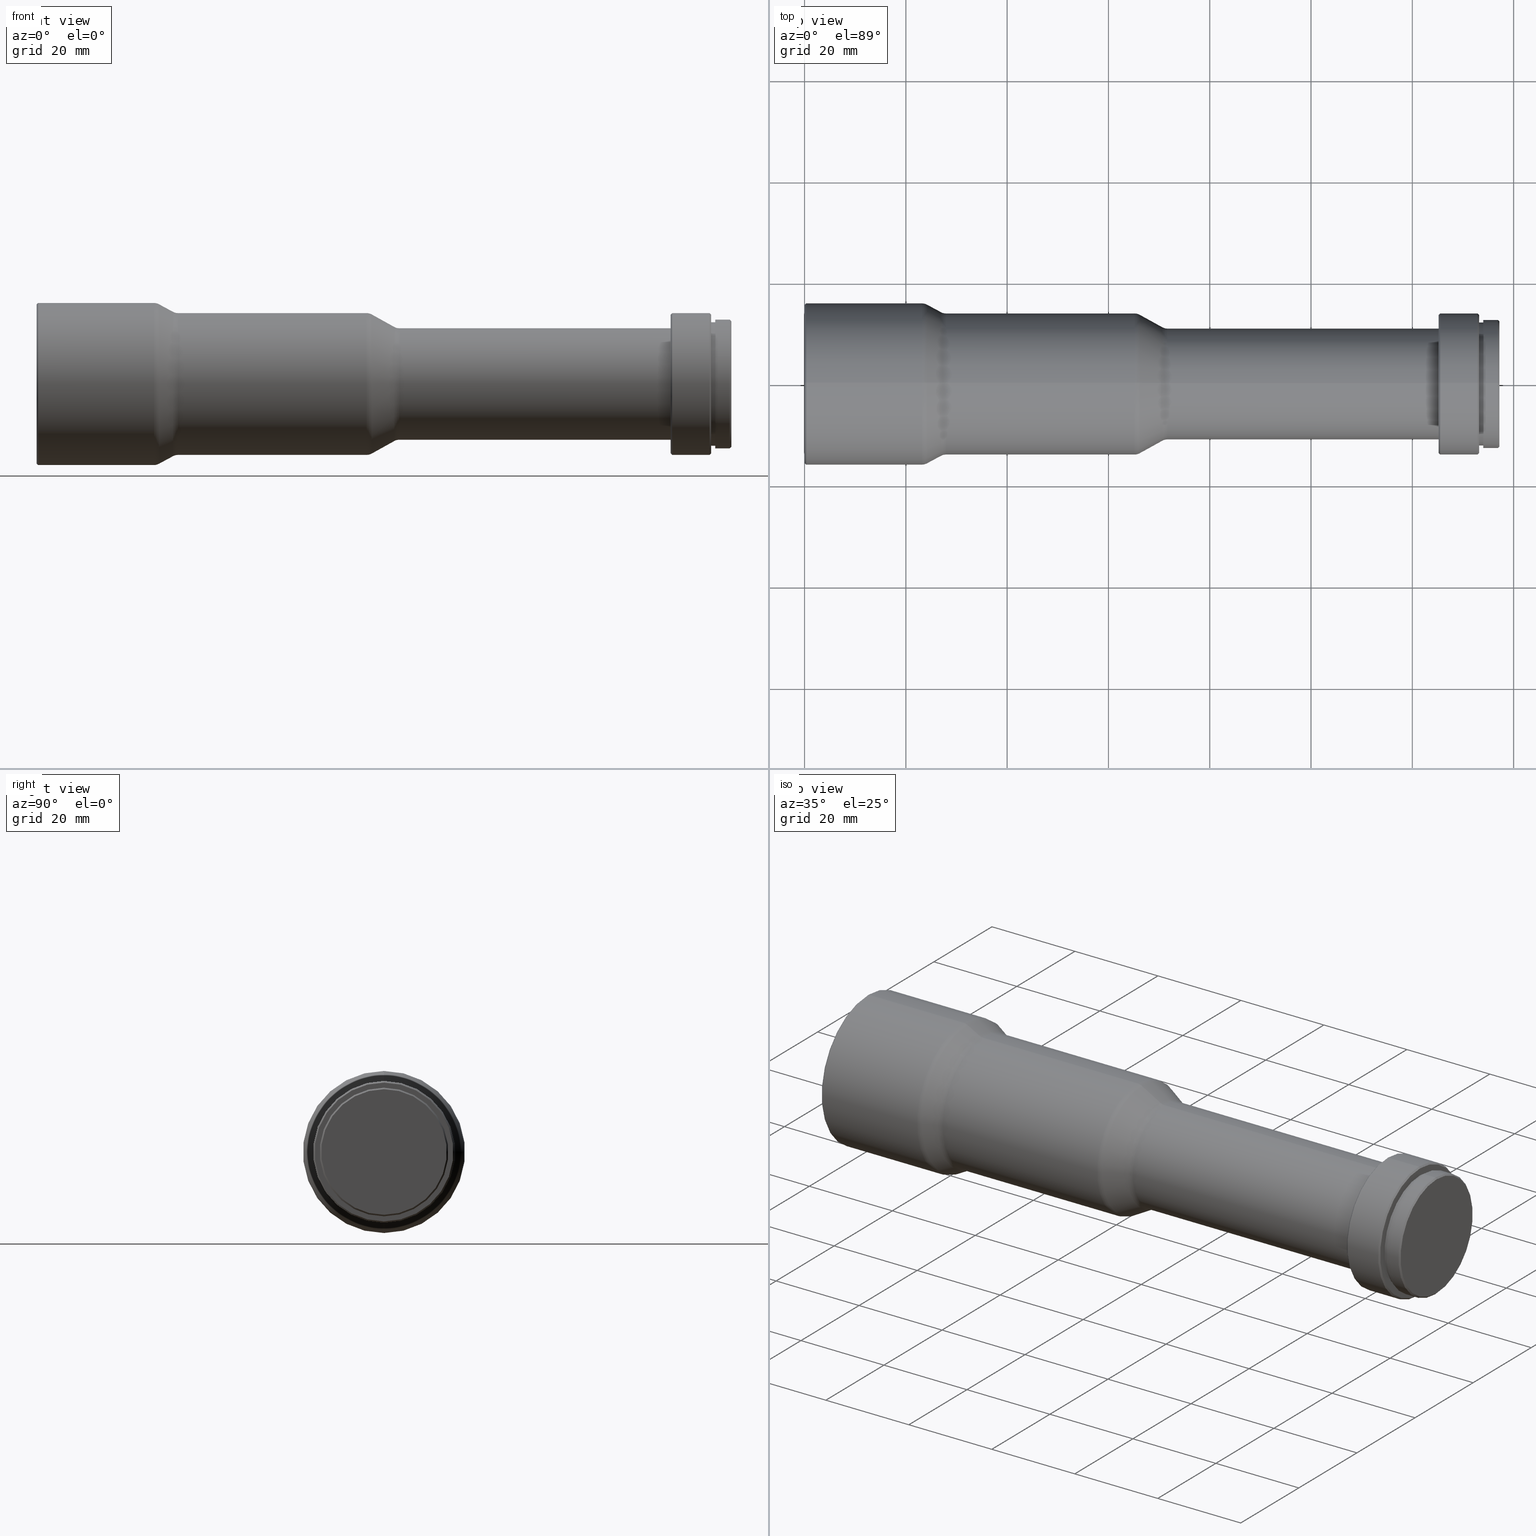
[diagram: canonical four-view strip — front | top / right | iso, engineering-drawing reading convention]
A machine part, canonical four-view strip (front | top / right | iso — engineering-drawing reading convention). The complete STEP part file that produces these views, byte-faithful:
ISO-10303-21;
HEADER;
FILE_DESCRIPTION (( 'STEP AP203' ),
    '1' );
FILE_NAME ('WWH40-108ATV2.STEP',
    '2020-09-14T03:58:26',
    ( 'Windows User' ),
    ( 'P R C' ),
    'SwSTEP 2.0',
    'SolidWorks 2017',
    '' );
FILE_SCHEMA (( 'CONFIG_CONTROL_DESIGN' ));
ENDSEC;

DATA;
#1 = CARTESIAN_POINT ( 'NONE',  ( 0.3000000000000003800, 0.0000000000000000000, 0.0000000000000000000 ) ) ;
#2 = VERTEX_POINT ( 'NONE', #785 ) ;
#3 = EDGE_LOOP ( 'NONE', ( #221, #635 ) ) ;
#4 = VECTOR ( 'NONE', #53, 1000.000000000000000 ) ;
#5 = VECTOR ( 'NONE', #205, 1000.000000000000100 ) ;
#6 = ORIENTED_EDGE ( 'NONE', *, *, #82, .F. ) ;
#7 = AXIS2_PLACEMENT_3D ( 'NONE', #846, #1024, #1004 ) ;
#8 = DIRECTION ( 'NONE',  ( 0.0000000000000000000, 0.0000000000000000000, 1.000000000000000000 ) ) ;
#9 = ORIENTED_EDGE ( 'NONE', *, *, #500, .F. ) ;
#10 = DIRECTION ( 'NONE',  ( -1.000000000000000000, -0.0000000000000000000, -0.0000000000000000000 ) ) ;
#11 = AXIS2_PLACEMENT_3D ( 'NONE', #363, #358, #369 ) ;
#12 = APPROVAL_ROLE ( '' ) ;
#13 = EDGE_CURVE ( 'NONE', #670, #161, #843, .T. ) ;
#14 = CARTESIAN_POINT ( 'NONE',  ( -3.741758549102351900, 0.0000000000000000000, 12.70000000000000500 ) ) ;
#15 = VERTEX_POINT ( 'NONE', #463 ) ;
#16 = DIRECTION ( 'NONE',  ( -1.000000000000000000, -0.0000000000000000000, -0.0000000000000000000 ) ) ;
#17 = VECTOR ( 'NONE', #134, 1000.000000000000000 ) ;
#18 = EDGE_CURVE ( 'NONE', #720, #371, #978, .T. ) ;
#19 = FACE_OUTER_BOUND ( 'NONE', #218, .T. ) ;
#20 = EDGE_CURVE ( 'NONE', #1017, #159, #313, .T. ) ;
#21 = CARTESIAN_POINT ( 'NONE',  ( -3.741758549102351900, 0.0000000000000000000, 0.0000000000000000000 ) ) ;
#22 = VERTEX_POINT ( 'NONE', #545 ) ;
#23 = ORIENTED_EDGE ( 'NONE', *, *, #183, .T. ) ;
#24 = AXIS2_PLACEMENT_3D ( 'NONE', #954, #204, #454 ) ;
#25 = CARTESIAN_POINT ( 'NONE',  ( -3.741758549102351900, 0.0000000000000000000, 12.20000000000000500 ) ) ;
#26 = DIRECTION ( 'NONE',  ( 0.0000000000000000000, 0.0000000000000000000, 1.000000000000000000 ) ) ;
#27 = FACE_OUTER_BOUND ( 'NONE', #611, .T. ) ;
#28 = FACE_OUTER_BOUND ( 'NONE', #58, .T. ) ;
#29 = DIRECTION ( 'NONE',  ( 0.0000000000000000000, 0.0000000000000000000, 1.000000000000000000 ) ) ;
#30 = AXIS2_PLACEMENT_3D ( 'NONE', #234, #929, #577 ) ;
#31 = CARTESIAN_POINT ( 'NONE',  ( 23.19405183103738100, 0.0000000000000000000, 14.00000000000000400 ) ) ;
#32 = ORIENTED_EDGE ( 'NONE', *, *, #1025, .T. ) ;
#33 = EDGE_CURVE ( 'NONE', #124, #248, #764, .T. ) ;
#34 = CARTESIAN_POINT ( 'NONE',  ( 0.0000000000000000000, 1.836970198721029600E-015, -15.00000000000000000 ) ) ;
#35 = ORIENTED_EDGE ( 'NONE', *, *, #258, .T. ) ;
#36 = EDGE_CURVE ( 'NONE', #474, #440, #382, .T. ) ;
#37 = CARTESIAN_POINT ( 'NONE',  ( 24.14508589976833600, 0.0000000000000000000, 0.0000000000000000000 ) ) ;
#38 = ORIENTED_EDGE ( 'NONE', *, *, #946, .T. ) ;
#39 = ORIENTED_EDGE ( 'NONE', *, *, #209, .F. ) ;
#40 = CIRCLE ( 'NONE', #191, 15.00000000000000000 ) ;
#41 = CONICAL_SURFACE ( 'NONE', #11, 11.25168544775693000, 0.5070985043923380600 ) ;
#42 = CARTESIAN_POINT ( 'NONE',  ( 133.9999999999999700, 0.0000000000000000000, 0.0000000000000000000 ) ) ;
#43 = AXIS2_PLACEMENT_3D ( 'NONE', #913, #407, #398 ) ;
#44 = CARTESIAN_POINT ( 'NONE',  ( 137.1999999999999900, 0.0000000000000000000, 0.0000000000000000000 ) ) ;
#45 = DIRECTION ( 'NONE',  ( -1.000000000000000000, -0.0000000000000000000, -0.0000000000000000000 ) ) ;
#46 = DIRECTION ( 'NONE',  ( 0.0000000000000000000, 0.0000000000000000000, 1.000000000000000000 ) ) ;
#47 = TOROIDAL_SURFACE ( 'NONE', #43, 14.00000000000000400, 1.999999999999999100 ) ;
#48 = CIRCLE ( 'NONE', #992, 2.000000000000000000 ) ;
#49 = DIRECTION ( 'NONE',  ( -0.7071067811865414700, 8.659560562355008000E-017, -0.7071067811865536800 ) ) ;
#50 = FACE_OUTER_BOUND ( 'NONE', #3, .T. ) ;
#51 = DIRECTION ( 'NONE',  ( -1.000000000000000000, -0.0000000000000000000, -0.0000000000000000000 ) ) ;
#52 = ADVANCED_FACE ( 'NONE', ( #480 ), #1008, .F. ) ;
#53 = DIRECTION ( 'NONE',  ( -1.000000000000000000, -0.0000000000000000000, -0.0000000000000000000 ) ) ;
#54 = SECURITY_CLASSIFICATION ( '', '', #776 ) ;
#55 = ADVANCED_FACE ( 'NONE', ( #552 ), #296, .F. ) ;
#56 = DIRECTION ( 'NONE',  ( 0.0000000000000000000, 0.0000000000000000000, -1.000000000000000000 ) ) ;
#57 = LOCAL_TIME ( 11, 58, 26.00000000000000000, #589 ) ;
#58 = EDGE_LOOP ( 'NONE', ( #346, #989, #837, #403 ) ) ;
#59 = AXIS2_PLACEMENT_3D ( 'NONE', #166, #941, #923 ) ;
#60 = CIRCLE ( 'NONE', #467, 12.20000000000000500 ) ;
#61 = DIRECTION ( 'NONE',  ( -1.000000000000000000, -0.0000000000000000000, -0.0000000000000000000 ) ) ;
#62 = FACE_BOUND ( 'NONE', #894, .T. ) ;
#63 = ORIENTED_EDGE ( 'NONE', *, *, #141, .F. ) ;
#64 = EDGE_CURVE ( 'NONE', #206, #670, #427, .T. ) ;
#65 = AXIS2_PLACEMENT_3D ( 'NONE', #42, #203, #208 ) ;
#66 = VERTEX_POINT ( 'NONE', #566 ) ;
#67 = DIRECTION ( 'NONE',  ( 0.0000000000000000000, 0.0000000000000000000, 1.000000000000000000 ) ) ;
#68 = CARTESIAN_POINT ( 'NONE',  ( 23.19405183103737000, 0.0000000000000000000, 0.0000000000000000000 ) ) ;
#69 = ORIENTED_EDGE ( 'NONE', *, *, #500, .T. ) ;
#70 = CARTESIAN_POINT ( 'NONE',  ( -3.741758549102351900, 0.0000000000000000000, 0.0000000000000000000 ) ) ;
#71 = ADVANCED_FACE ( 'NONE', ( #816 ), #592, .F. ) ;
#72 = LINE ( 'NONE', #634, #5 ) ;
#73 = LINE ( 'NONE', #911, #225 ) ;
#74 = AXIS2_PLACEMENT_3D ( 'NONE', #390, #887, #1079 ) ;
#75 = DIRECTION ( 'NONE',  ( 0.0000000000000000000, 0.0000000000000000000, 1.000000000000000000 ) ) ;
#76 = CARTESIAN_POINT ( 'NONE',  ( 133.1999999999999900, 0.0000000000000000000, 0.0000000000000000000 ) ) ;
#77 = EDGE_LOOP ( 'NONE', ( #493, #1069 ) ) ;
#78 = CARTESIAN_POINT ( 'NONE',  ( 125.1999999999999700, 0.0000000000000000000, 0.0000000000000000000 ) ) ;
#79 = AXIS2_PLACEMENT_3D ( 'NONE', #76, #252, #1015 ) ;
#80 = PLANE ( 'NONE',  #116 ) ;
#81 = DIRECTION ( 'NONE',  ( -1.000000000000000000, -0.0000000000000000000, -0.0000000000000000000 ) ) ;
#82 = EDGE_CURVE ( 'NONE', #248, #206, #632, .T. ) ;
#83 = ORIENTED_EDGE ( 'NONE', *, *, #202, .F. ) ;
#84 = PERSON_AND_ORGANIZATION ( #137, #1096 ) ;
#85 = ORIENTED_EDGE ( 'NONE', *, *, #291, .T. ) ;
#86 = CONICAL_SURFACE ( 'NONE', #230, 14.24058697284775100, 0.4955516734858291300 ) ;
#87 =( LENGTH_UNIT ( ) NAMED_UNIT ( * ) SI_UNIT ( .MILLI., .METRE. ) );
#88 = FACE_OUTER_BOUND ( 'NONE', #300, .T. ) ;
#89 = APPROVAL_ROLE ( '' ) ;
#90 = DIRECTION ( 'NONE',  ( -1.000000000000000000, -0.0000000000000000000, -0.0000000000000000000 ) ) ;
#91 = ORIENTED_EDGE ( 'NONE', *, *, #1021, .F. ) ;
#92 = DIRECTION ( 'NONE',  ( 0.0000000000000000000, 0.0000000000000000000, 1.000000000000000000 ) ) ;
#93 = CARTESIAN_POINT ( 'NONE',  ( -3.741758549102351900, 0.0000000000000000000, 0.0000000000000000000 ) ) ;
#94 = PRODUCT_DEFINITION_FORMATION_WITH_SPECIFIED_SOURCE ( '�κ�', '', #814, .NOT_KNOWN. ) ;
#95 = PERSON_AND_ORGANIZATION_ROLE ( 'creator' ) ;
#96 = CARTESIAN_POINT ( 'NONE',  ( 65.18174794360518800, 0.0000000000000000000, 0.0000000000000000000 ) ) ;
#97 = DATE_AND_TIME ( #106, #122 ) ;
#98 = LINE ( 'NONE', #352, #777 ) ;
#99 = DIRECTION ( 'NONE',  ( 0.0000000000000000000, 0.0000000000000000000, 1.000000000000000000 ) ) ;
#100 = CIRCLE ( 'NONE', #471, 2.000000000000000000 ) ;
#101 = CARTESIAN_POINT ( 'NONE',  ( -3.741758549102351900, 0.0000000000000000000, 0.0000000000000000000 ) ) ;
#102 = CARTESIAN_POINT ( 'NONE',  ( 133.9999999999999700, 0.0000000000000000000, 0.0000000000000000000 ) ) ;
#103 = EDGE_LOOP ( 'NONE', ( #524, #1062, #1060, #781 ) ) ;
#104 = CARTESIAN_POINT ( 'NONE',  ( 125.1999999999999700, 0.0000000000000000000, 11.00000000000000000 ) ) ;
#105 = ORIENTED_EDGE ( 'NONE', *, *, #657, .T. ) ;
#106 = CALENDAR_DATE ( 2020, 14, 9 ) ;
#107 = AXIS2_PLACEMENT_3D ( 'NONE', #506, #1100, #75 ) ;
#108 = CARTESIAN_POINT ( 'NONE',  ( 2.500000000000000000, 0.0000000000000000000, 15.00000000000000000 ) ) ;
#109 = DIRECTION ( 'NONE',  ( -1.000000000000000000, -0.0000000000000000000, -0.0000000000000000000 ) ) ;
#110 = ORIENTED_EDGE ( 'NONE', *, *, #1000, .F. ) ;
#111 = CARTESIAN_POINT ( 'NONE',  ( 132.8999999999999800, 0.0000000000000000000, 0.0000000000000000000 ) ) ;
#112 = CONICAL_SURFACE ( 'NONE', #1070, 13.70000000000000100, 0.7853981633974569400 ) ;
#113 = CIRCLE ( 'NONE', #120, 11.00000000000000000 ) ;
#114 = DIRECTION ( 'NONE',  ( -1.000000000000000000, -0.0000000000000000000, -0.0000000000000000000 ) ) ;
#115 = DIRECTION ( 'NONE',  ( 0.0000000000000000000, 0.0000000000000000000, 1.000000000000000000 ) ) ;
#116 = AXIS2_PLACEMENT_3D ( 'NONE', #844, #1011, #265 ) ;
#117 = ORIENTED_EDGE ( 'NONE', *, *, #938, .T. ) ;
#118 = CARTESIAN_POINT ( 'NONE',  ( -3.741758549102351900, 0.0000000000000000000, 16.00000000000000400 ) ) ;
#119 = EDGE_CURVE ( 'NONE', #799, #1058, #113, .T. ) ;
#120 = AXIS2_PLACEMENT_3D ( 'NONE', #975, #389, #1078 ) ;
#121 = ORIENTED_EDGE ( 'NONE', *, *, #735, .F. ) ;
#122 = LOCAL_TIME ( 11, 58, 26.00000000000000000, #379 ) ;
#123 = CIRCLE ( 'NONE', #1014, 11.25168544775693000 ) ;
#124 = VERTEX_POINT ( 'NONE', #384 ) ;
#125 = DIRECTION ( 'NONE',  ( 0.0000000000000000000, 0.0000000000000000000, 1.000000000000000000 ) ) ;
#126 = VERTEX_POINT ( 'NONE', #811 ) ;
#127 = AXIS2_PLACEMENT_3D ( 'NONE', #372, #745, #503 ) ;
#128 = EDGE_LOOP ( 'NONE', ( #588, #885, #515, #759 ) ) ;
#129 = ORIENTED_EDGE ( 'NONE', *, *, #875, .T. ) ;
#130 = DIRECTION ( 'NONE',  ( -1.000000000000000000, -0.0000000000000000000, -0.0000000000000000000 ) ) ;
#131 = AXIS2_PLACEMENT_3D ( 'NONE', #428, #330, #606 ) ;
#132 = CARTESIAN_POINT ( 'NONE',  ( -3.741758549102351900, 1.555301434917139000E-015, -12.70000000000000500 ) ) ;
#133 = DIRECTION ( 'NONE',  ( 0.0000000000000000000, 0.0000000000000000000, 1.000000000000000000 ) ) ;
#134 = DIRECTION ( 'NONE',  ( -1.000000000000000000, -0.0000000000000000000, -0.0000000000000000000 ) ) ;
#135 = CIRCLE ( 'NONE', #356, 16.00000000000000400 ) ;
#136 = CIRCLE ( 'NONE', #79, 12.20000000000000500 ) ;
#137 = PERSON ( 'δָ��', 'δָ��', 'δָ��', ('δָ��'), ('δָ��'), ('δָ��') ) ;
#138 = CARTESIAN_POINT ( 'NONE',  ( -3.741758549102351900, 0.0000000000000000000, 0.0000000000000000000 ) ) ;
#139 = DIRECTION ( 'NONE',  ( -1.000000000000000000, 0.0000000000000000000, -0.0000000000000000000 ) ) ;
#140 = CARTESIAN_POINT ( 'NONE',  ( 137.1999999999999900, 0.0000000000000000000, 0.0000000000000000000 ) ) ;
#141 = EDGE_CURVE ( 'NONE', #206, #558, #168, .T. ) ;
#142 = DIRECTION ( 'NONE',  ( 0.0000000000000000000, 0.0000000000000000000, 1.000000000000000000 ) ) ;
#143 = EDGE_LOOP ( 'NONE', ( #181, #1055 ) ) ;
#144 = ADVANCED_FACE ( 'NONE', ( #925 ), #156, .T. ) ;
#145 = CARTESIAN_POINT ( 'NONE',  ( 0.3000000000000003800, 0.0000000000000000000, -16.00000000000000400 ) ) ;
#146 = ORIENTED_EDGE ( 'NONE', *, *, #1016, .F. ) ;
#147 = DIRECTION ( 'NONE',  ( 0.0000000000000000000, 0.0000000000000000000, 1.000000000000000000 ) ) ;
#148 = CARTESIAN_POINT ( 'NONE',  ( 133.1999999999999900, 0.0000000000000000000, 0.0000000000000000000 ) ) ;
#149 = EDGE_LOOP ( 'NONE', ( #757, #35, #827, #256 ) ) ;
#150 = ORIENTED_EDGE ( 'NONE', *, *, #435, .T. ) ;
#151 = ADVANCED_FACE ( 'NONE', ( #28 ), #953, .T. ) ;
#152 = CARTESIAN_POINT ( 'NONE',  ( 27.90594816896262700, 0.0000000000000000000, 0.0000000000000000000 ) ) ;
#153 = CALENDAR_DATE ( 2020, 14, 9 ) ;
#154 = CC_DESIGN_PERSON_AND_ORGANIZATION_ASSIGNMENT ( #830, #95, ( #94 ) ) ;
#155 = FACE_OUTER_BOUND ( 'NONE', #128, .T. ) ;
#156 = TOROIDAL_SURFACE ( 'NONE', #613, 12.00000000000000500, 1.999999999999999100 ) ;
#157 = ADVANCED_FACE ( 'NONE', ( #715 ), #527, .T. ) ;
#158 = DIRECTION ( 'NONE',  ( -0.0000000000000000000, 1.000000000000000000, 1.224646799147353200E-016 ) ) ;
#159 = VERTEX_POINT ( 'NONE', #397 ) ;
#160 = DIRECTION ( 'NONE',  ( 0.0000000000000000000, 0.0000000000000000000, 1.000000000000000000 ) ) ;
#161 = VERTEX_POINT ( 'NONE', #725 ) ;
#162 = CALENDAR_DATE ( 2020, 14, 9 ) ;
#163 = CARTESIAN_POINT ( 'NONE',  ( 0.0000000000000000000, 0.0000000000000000000, 0.0000000000000000000 ) ) ;
#164 = DIRECTION ( 'NONE',  ( 1.000000000000000000, 0.0000000000000000000, 0.0000000000000000000 ) ) ;
#165 = FACE_OUTER_BOUND ( 'NONE', #149, .T. ) ;
#166 = CARTESIAN_POINT ( 'NONE',  ( 71.61825205639480900, 0.0000000000000000000, 0.0000000000000000000 ) ) ;
#167 = FACE_OUTER_BOUND ( 'NONE', #602, .T. ) ;
#168 = CIRCLE ( 'NONE', #700, 12.70000000000000500 ) ;
#169 = APPROVAL ( #861, 'δָ��' ) ;
#170 = CARTESIAN_POINT ( 'NONE',  ( 71.61825205639479500, 1.592040838891559100E-015, -13.00000000000000000 ) ) ;
#171 = ORIENTED_EDGE ( 'NONE', *, *, #20, .F. ) ;
#172 = CARTESIAN_POINT ( 'NONE',  ( 0.3000000000000003800, 0.0000000000000000000, 0.0000000000000000000 ) ) ;
#173 = CARTESIAN_POINT ( 'NONE',  ( 71.61825205639480900, 0.0000000000000000000, 0.0000000000000000000 ) ) ;
#174 = AXIS2_PLACEMENT_3D ( 'NONE', #780, #697, #270 ) ;
#175 = ORIENTED_EDGE ( 'NONE', *, *, #1086, .T. ) ;
#176 = AXIS2_PLACEMENT_3D ( 'NONE', #993, #998, #142 ) ;
#177 = EDGE_LOOP ( 'NONE', ( #1074, #186, #434, #618 ) ) ;
#178 = CARTESIAN_POINT ( 'NONE',  ( 0.0000000000000000000, 0.0000000000000000000, 0.0000000000000000000 ) ) ;
#179 = ORIENTED_EDGE ( 'NONE', *, *, #345, .T. ) ;
#180 = EDGE_CURVE ( 'NONE', #417, #66, #100, .T. ) ;
#181 = ORIENTED_EDGE ( 'NONE', *, *, #1000, .T. ) ;
#182 = FACE_OUTER_BOUND ( 'NONE', #891, .T. ) ;
#183 = EDGE_CURVE ( 'NONE', #1058, #799, #1022, .T. ) ;
#184 = CYLINDRICAL_SURFACE ( 'NONE', #241, 12.20000000000000500 ) ;
#185 = DIRECTION ( 'NONE',  ( -1.000000000000000000, -0.0000000000000000000, -0.0000000000000000000 ) ) ;
#186 = ORIENTED_EDGE ( 'NONE', *, *, #686, .T. ) ;
#187 = ORIENTED_EDGE ( 'NONE', *, *, #264, .T. ) ;
#188 = APPROVAL_ROLE ( '' ) ;
#189 = DIRECTION ( 'NONE',  ( 0.0000000000000000000, 0.0000000000000000000, 1.000000000000000000 ) ) ;
#190 = CARTESIAN_POINT ( 'NONE',  ( 125.1999999999999700, 0.0000000000000000000, -13.70000000000000100 ) ) ;
#191 = AXIS2_PLACEMENT_3D ( 'NONE', #740, #653, #67 ) ;
#192 = DIRECTION ( 'NONE',  ( -1.000000000000000000, -0.0000000000000000000, -0.0000000000000000000 ) ) ;
#193 = CARTESIAN_POINT ( 'NONE',  ( 125.4999999999999700, 0.0000000000000000000, 0.0000000000000000000 ) ) ;
#194 = ORIENTED_EDGE ( 'NONE', *, *, #640, .F. ) ;
#195 = FACE_OUTER_BOUND ( 'NONE', #1010, .T. ) ;
#196 = VECTOR ( 'NONE', #845, 1000.000000000000100 ) ;
#197 = DIRECTION ( 'NONE',  ( -1.000000000000000000, -0.0000000000000000000, -0.0000000000000000000 ) ) ;
#198 = AXIS2_PLACEMENT_3D ( 'NONE', #111, #966, #707 ) ;
#199 = DIRECTION ( 'NONE',  ( -1.000000000000000000, -0.0000000000000000000, -0.0000000000000000000 ) ) ;
#200 = ORIENTED_EDGE ( 'NONE', *, *, #183, .F. ) ;
#201 = DIRECTION ( 'NONE',  ( -0.0000000000000000000, 1.000000000000000000, 1.224646799147353200E-016 ) ) ;
#202 = EDGE_CURVE ( 'NONE', #567, #462, #681, .T. ) ;
#203 = DIRECTION ( 'NONE',  ( -1.000000000000000000, -0.0000000000000000000, -0.0000000000000000000 ) ) ;
#204 = DIRECTION ( 'NONE',  ( -1.000000000000000000, -0.0000000000000000000, -0.0000000000000000000 ) ) ;
#205 = DIRECTION ( 'NONE',  ( -0.8797065135761267300, 0.0000000000000000000, 0.4755170343654744900 ) ) ;
#206 = VERTEX_POINT ( 'NONE', #220 ) ;
#207 = ORIENTED_EDGE ( 'NONE', *, *, #1056, .T. ) ;
#208 = DIRECTION ( 'NONE',  ( 0.0000000000000000000, 0.0000000000000000000, 1.000000000000000000 ) ) ;
#209 = EDGE_CURVE ( 'NONE', #970, #1068, #1053, .T. ) ;
#210 = DIRECTION ( 'NONE',  ( 0.0000000000000000000, 0.0000000000000000000, 1.000000000000000000 ) ) ;
#211 = VERTEX_POINT ( 'NONE', #504 ) ;
#212 = ORIENTED_EDGE ( 'NONE', *, *, #367, .F. ) ;
#213 = CALENDAR_DATE ( 2020, 14, 9 ) ;
#214 = CIRCLE ( 'NONE', #465, 2.000000000000000000 ) ;
#215 = CC_DESIGN_PERSON_AND_ORGANIZATION_ASSIGNMENT ( #534, #1027, ( #54 ) ) ;
#216 = CARTESIAN_POINT ( 'NONE',  ( 0.0000000000000000000, 0.0000000000000000000, 0.0000000000000000000 ) ) ;
#217 = ORIENTED_EDGE ( 'NONE', *, *, #661, .T. ) ;
#218 = EDGE_LOOP ( 'NONE', ( #673, #651, #863, #150 ) ) ;
#219 = ORIENTED_EDGE ( 'NONE', *, *, #470, .F. ) ;
#220 = CARTESIAN_POINT ( 'NONE',  ( 136.9000000000000100, 1.555301434917139000E-015, -12.70000000000000500 ) ) ;
#221 = ORIENTED_EDGE ( 'NONE', *, *, #33, .F. ) ;
#222 = CIRCLE ( 'NONE', #724, 15.70000000000000300 ) ;
#223 = DIRECTION ( 'NONE',  ( -1.000000000000000000, -0.0000000000000000000, -0.0000000000000000000 ) ) ;
#224 = CIRCLE ( 'NONE', #654, 14.00000000000000000 ) ;
#225 = VECTOR ( 'NONE', #668, 1000.000000000000000 ) ;
#226 = DIRECTION ( 'NONE',  ( 0.0000000000000000000, 0.0000000000000000000, 1.000000000000000000 ) ) ;
#227 = DIRECTION ( 'NONE',  ( -1.000000000000000000, -0.0000000000000000000, -0.0000000000000000000 ) ) ;
#228 = ADVANCED_FACE ( 'NONE', ( #339 ), #1097, .T. ) ;
#229 = ORIENTED_EDGE ( 'NONE', *, *, #291, .F. ) ;
#230 = AXIS2_PLACEMENT_3D ( 'NONE', #478, #376, #46 ) ;
#231 = DIRECTION ( 'NONE',  ( 0.0000000000000000000, 0.0000000000000000000, 1.000000000000000000 ) ) ;
#232 = DIRECTION ( 'NONE',  ( 0.0000000000000000000, 0.0000000000000000000, -1.000000000000000000 ) ) ;
#233 = ORIENTED_EDGE ( 'NONE', *, *, #769, .F. ) ;
#234 = CARTESIAN_POINT ( 'NONE',  ( 27.90594816896261300, 1.959434878635765100E-015, -16.00000000000000000 ) ) ;
#235 = AXIS2_PLACEMENT_3D ( 'NONE', #93, #628, #860 ) ;
#236 = DIRECTION ( 'NONE',  ( -1.000000000000000000, -0.0000000000000000000, -0.0000000000000000000 ) ) ;
#237 = EDGE_LOOP ( 'NONE', ( #854, #582, #459, #520 ) ) ;
#238 = EDGE_LOOP ( 'NONE', ( #487, #408, #748, #900 ) ) ;
#239 = CARTESIAN_POINT ( 'NONE',  ( 133.1999999999999900, 0.0000000000000000000, 12.20000000000000500 ) ) ;
#240 = CONICAL_SURFACE ( 'NONE', #280, 16.00000000000000400, 0.7853981633974505000 ) ;
#241 = AXIS2_PLACEMENT_3D ( 'NONE', #536, #859, #99 ) ;
#242 = DIRECTION ( 'NONE',  ( 0.0000000000000000000, 0.0000000000000000000, 1.000000000000000000 ) ) ;
#243 = VECTOR ( 'NONE', #853, 1000.000000000000000 ) ;
#244 = AXIS2_PLACEMENT_3D ( 'NONE', #44, #729, #1071 ) ;
#245 = ADVANCED_FACE ( 'NONE', ( #728, #366 ), #306, .F. ) ;
#246 = DIRECTION ( 'NONE',  ( -1.000000000000000000, -0.0000000000000000000, -0.0000000000000000000 ) ) ;
#247 = APPROVAL_DATE_TIME ( #97, #169 ) ;
#248 = VERTEX_POINT ( 'NONE', #831 ) ;
#249 = CYLINDRICAL_SURFACE ( 'NONE', #410, 16.00000000000000400 ) ;
#250 = FACE_OUTER_BOUND ( 'NONE', #783, .T. ) ;
#251 = FACE_BOUND ( 'NONE', #374, .T. ) ;
#252 = DIRECTION ( 'NONE',  ( -1.000000000000000000, -0.0000000000000000000, -0.0000000000000000000 ) ) ;
#253 = CARTESIAN_POINT ( 'NONE',  ( 66.15303380596248000, 0.0000000000000000000, 0.0000000000000000000 ) ) ;
#254 = EDGE_LOOP ( 'NONE', ( #38, #187 ) ) ;
#255 = AXIS2_PLACEMENT_3D ( 'NONE', #1040, #1046, #460 ) ;
#256 = ORIENTED_EDGE ( 'NONE', *, *, #828, .F. ) ;
#257 = CARTESIAN_POINT ( 'NONE',  ( -3.741758549102351900, 0.0000000000000000000, 14.00000000000000000 ) ) ;
#258 = EDGE_CURVE ( 'NONE', #1076, #1030, #538, .T. ) ;
#259 = ORIENTED_EDGE ( 'NONE', *, *, #557, .T. ) ;
#260 = DIRECTION ( 'NONE',  ( -1.000000000000000000, -0.0000000000000000000, -0.0000000000000000000 ) ) ;
#261 = CARTESIAN_POINT ( 'NONE',  ( 66.15303380596248000, 0.0000000000000000000, 13.74831455224307500 ) ) ;
#262 = EDGE_CURVE ( 'NONE', #829, #1012, #994, .T. ) ;
#263 = FACE_OUTER_BOUND ( 'NONE', #237, .T. ) ;
#264 = EDGE_CURVE ( 'NONE', #474, #1017, #608, .T. ) ;
#265 = DIRECTION ( 'NONE',  ( -0.0000000000000000000, 0.0000000000000000000, 1.000000000000000000 ) ) ;
#266 = VECTOR ( 'NONE', #443, 1000.000000000000000 ) ;
#267 = CARTESIAN_POINT ( 'NONE',  ( 23.19405183103738100, 0.0000000000000000000, 0.0000000000000000000 ) ) ;
#268 = PERSON_AND_ORGANIZATION_ROLE ( 'creator' ) ;
#269 = CARTESIAN_POINT ( 'NONE',  ( 27.90594816896261300, 0.0000000000000000000, 0.0000000000000000000 ) ) ;
#270 = DIRECTION ( 'NONE',  ( 0.0000000000000000000, 0.0000000000000000000, -1.000000000000000000 ) ) ;
#271 = DIRECTION ( 'NONE',  ( -1.000000000000000000, -0.0000000000000000000, -0.0000000000000000000 ) ) ;
#272 = DIRECTION ( 'NONE',  ( -1.000000000000000000, -0.0000000000000000000, -0.0000000000000000000 ) ) ;
#273 = CYLINDRICAL_SURFACE ( 'NONE', #405, 12.70000000000000500 ) ;
#274 = VECTOR ( 'NONE', #519, 1000.000000000000100 ) ;
#275 = DIRECTION ( 'NONE',  ( 0.0000000000000000000, 0.0000000000000000000, 1.000000000000000000 ) ) ;
#276 = EDGE_LOOP ( 'NONE', ( #787, #795, #217, #927 ) ) ;
#277 = CARTESIAN_POINT ( 'NONE',  ( 125.4999999999999700, 0.0000000000000000000, -14.00000000000000000 ) ) ;
#278 = DIRECTION ( 'NONE',  ( -1.000000000000000000, -0.0000000000000000000, -0.0000000000000000000 ) ) ;
#279 = ORIENTED_EDGE ( 'NONE', *, *, #841, .T. ) ;
#280 = AXIS2_PLACEMENT_3D ( 'NONE', #660, #813, #232 ) ;
#281 = DIRECTION ( 'NONE',  ( -1.000000000000000000, -0.0000000000000000000, -0.0000000000000000000 ) ) ;
#282 = DIRECTION ( 'NONE',  ( -1.000000000000000000, -0.0000000000000000000, -0.0000000000000000000 ) ) ;
#283 = EDGE_LOOP ( 'NONE', ( #597, #865, #755, #171 ) ) ;
#284 = EDGE_LOOP ( 'NONE', ( #105, #129, #495, #121 ) ) ;
#285 = CIRCLE ( 'NONE', #857, 13.70000000000000100 ) ;
#286 = FACE_OUTER_BOUND ( 'NONE', #805, .T. ) ;
#287 = CARTESIAN_POINT ( 'NONE',  ( 136.9000000000000100, 0.0000000000000000000, 0.0000000000000000000 ) ) ;
#288 = CIRCLE ( 'NONE', #59, 11.00000000000000000 ) ;
#289 = AXIS2_PLACEMENT_3D ( 'NONE', #733, #742, #501 ) ;
#290 = CARTESIAN_POINT ( 'NONE',  ( 0.0000000000000000000, 0.0000000000000000000, 0.0000000000000000000 ) ) ;
#291 = EDGE_CURVE ( 'NONE', #615, #633, #73, .T. ) ;
#292 = AXIS2_PLACEMENT_3D ( 'NONE', #560, #227, #641 ) ;
#293 = DIRECTION ( 'NONE',  ( -1.000000000000000000, -0.0000000000000000000, -0.0000000000000000000 ) ) ;
#294 = CARTESIAN_POINT ( 'NONE',  ( 66.15303380596248000, 0.0000000000000000000, 0.0000000000000000000 ) ) ;
#295 = LINE ( 'NONE', #14, #243 ) ;
#296 = TOROIDAL_SURFACE ( 'NONE', #1042, 16.00000000000000000, 1.999999999999999100 ) ;
#297 = ADVANCED_FACE ( 'NONE', ( #88 ), #778, .T. ) ;
#298 = AXIS2_PLACEMENT_3D ( 'NONE', #172, #164, #679 ) ;
#299 = DIRECTION ( 'NONE',  ( -1.000000000000000000, -0.0000000000000000000, -0.0000000000000000000 ) ) ;
#300 = EDGE_LOOP ( 'NONE', ( #981, #643, #1034, #999 ) ) ;
#301 = AXIS2_PLACEMENT_3D ( 'NONE', #689, #734, #56 ) ;
#302 = EDGE_CURVE ( 'NONE', #387, #1088, #969, .T. ) ;
#303 = ORIENTED_EDGE ( 'NONE', *, *, #518, .T. ) ;
#304 = APPLICATION_CONTEXT ( 'configuration controlled 3d designs of mechanical parts and assemblies' ) ;
#305 = ORIENTED_EDGE ( 'NONE', *, *, #802, .T. ) ;
#306 = PLANE ( 'NONE',  #921 ) ;
#307 = CIRCLE ( 'NONE', #971, 16.00000000000000400 ) ;
#308 = ORIENTED_EDGE ( 'NONE', *, *, #719, .T. ) ;
#309 = CIRCLE ( 'NONE', #623, 13.74831455224307500 ) ;
#310 = EDGE_CURVE ( 'NONE', #343, #810, #514, .T. ) ;
#311 = ADVANCED_FACE ( 'NONE', ( #743 ), #622, .T. ) ;
#312 = DIRECTION ( 'NONE',  ( 0.0000000000000000000, 0.0000000000000000000, 1.000000000000000000 ) ) ;
#313 = LINE ( 'NONE', #108, #868 ) ;
#314 = DIRECTION ( 'NONE',  ( -1.000000000000000000, -0.0000000000000000000, -0.0000000000000000000 ) ) ;
#315 = DIRECTION ( 'NONE',  ( 0.0000000000000000000, 0.0000000000000000000, -1.000000000000000000 ) ) ;
#316 = CARTESIAN_POINT ( 'NONE',  ( 133.9999999999999700, 1.494069094959771500E-015, -12.20000000000000500 ) ) ;
#317 = ORIENTED_EDGE ( 'NONE', *, *, #367, .T. ) ;
#318 = ADVANCED_FACE ( 'NONE', ( #50 ), #80, .F. ) ;
#319 = CARTESIAN_POINT ( 'NONE',  ( 0.3000000000000003800, 1.959434878635765500E-015, 16.00000000000000400 ) ) ;
#320 = DIRECTION ( 'NONE',  ( -1.000000000000000000, -0.0000000000000000000, -0.0000000000000000000 ) ) ;
#321 =( GEOMETRIC_REPRESENTATION_CONTEXT ( 3 ) GLOBAL_UNCERTAINTY_ASSIGNED_CONTEXT ( ( #488 ) ) GLOBAL_UNIT_ASSIGNED_CONTEXT ( ( #87, #338, #690 ) ) REPRESENTATION_CONTEXT ( 'NONE', 'WORKASPACE' ) );
#322 = CARTESIAN_POINT ( 'NONE',  ( 125.1999999999999700, 1.347111479062088400E-015, -11.00000000000000000 ) ) ;
#323 = DIRECTION ( 'NONE',  ( 0.0000000000000000000, -1.000000000000000000, 0.0000000000000000000 ) ) ;
#324 = FACE_OUTER_BOUND ( 'NONE', #872, .T. ) ;
#325 = VECTOR ( 'NONE', #688, 1000.000000000000000 ) ;
#326 = EDGE_LOOP ( 'NONE', ( #91, #1049, #476, #961 ) ) ;
#327 = CARTESIAN_POINT ( 'NONE',  ( 26.95491410023165800, 0.0000000000000000000, 0.0000000000000000000 ) ) ;
#328 = CARTESIAN_POINT ( 'NONE',  ( -3.741758549102351900, 0.0000000000000000000, 0.0000000000000000000 ) ) ;
#329 = ORIENTED_EDGE ( 'NONE', *, *, #1021, .T. ) ;
#330 = DIRECTION ( 'NONE',  ( -1.000000000000000000, -0.0000000000000000000, -0.0000000000000000000 ) ) ;
#331 = DIRECTION ( 'NONE',  ( 0.0000000000000000000, -1.000000000000000000, 0.0000000000000000000 ) ) ;
#332 = EDGE_LOOP ( 'NONE', ( #194, #674, #684, #821 ) ) ;
#333 = ORIENTED_EDGE ( 'NONE', *, *, #13, .F. ) ;
#334 = FACE_OUTER_BOUND ( 'NONE', #960, .T. ) ;
#335 = ORIENTED_EDGE ( 'NONE', *, *, #1086, .F. ) ;
#336 = CC_DESIGN_PERSON_AND_ORGANIZATION_ASSIGNMENT ( #988, #526, ( #814 ) ) ;
#337 = VECTOR ( 'NONE', #723, 1000.000000000000100 ) ;
#338 =( NAMED_UNIT ( * ) PLANE_ANGLE_UNIT ( ) SI_UNIT ( $, .RADIAN. ) );
#339 = FACE_OUTER_BOUND ( 'NONE', #254, .T. ) ;
#340 = AXIS2_PLACEMENT_3D ( 'NONE', #533, #201, #365 ) ;
#341 = ORIENTED_EDGE ( 'NONE', *, *, #36, .F. ) ;
#342 = AXIS2_PLACEMENT_3D ( 'NONE', #817, #51, #1083 ) ;
#343 = VERTEX_POINT ( 'NONE', #933 ) ;
#344 = EDGE_LOOP ( 'NONE', ( #69, #730, #83, #658 ) ) ;
#345 = EDGE_CURVE ( 'NONE', #371, #393, #708, .T. ) ;
#346 = ORIENTED_EDGE ( 'NONE', *, *, #202, .T. ) ;
#347 = AXIS2_PLACEMENT_3D ( 'NONE', #563, #45, #125 ) ;
#348 = DIRECTION ( 'NONE',  ( -1.000000000000000000, -0.0000000000000000000, -0.0000000000000000000 ) ) ;
#349 = APPROVAL_PERSON_ORGANIZATION ( #758, #169, #188 ) ;
#350 = FACE_OUTER_BOUND ( 'NONE', #572, .T. ) ;
#351 = VECTOR ( 'NONE', #579, 1000.000000000000100 ) ;
#352 = CARTESIAN_POINT ( 'NONE',  ( 137.1999999999999900, 0.0000000000000000000, 12.40000000000000400 ) ) ;
#353 = DIRECTION ( 'NONE',  ( -1.000000000000000000, -0.0000000000000000000, -0.0000000000000000000 ) ) ;
#354 = ORIENTED_EDGE ( 'NONE', *, *, #686, .F. ) ;
#355 = ORIENTED_EDGE ( 'NONE', *, *, #685, .T. ) ;
#356 = AXIS2_PLACEMENT_3D ( 'NONE', #710, #281, #189 ) ;
#357 = DIRECTION ( 'NONE',  ( 0.0000000000000000000, 0.0000000000000000000, 1.000000000000000000 ) ) ;
#358 = DIRECTION ( 'NONE',  ( -1.000000000000000000, -0.0000000000000000000, -0.0000000000000000000 ) ) ;
#359 = CARTESIAN_POINT ( 'NONE',  ( 137.1999999999999900, 0.0000000000000000000, 0.0000000000000000000 ) ) ;
#360 = ORIENTED_EDGE ( 'NONE', *, *, #773, .T. ) ;
#361 = AXIS2_PLACEMENT_3D ( 'NONE', #138, #81, #312 ) ;
#362 = TOROIDAL_SURFACE ( 'NONE', #1037, 16.00000000000000000, 1.999999999999999100 ) ;
#363 = CARTESIAN_POINT ( 'NONE',  ( 70.64696619403753200, 0.0000000000000000000, 0.0000000000000000000 ) ) ;
#364 = TOROIDAL_SURFACE ( 'NONE', #675, 12.00000000000000500, 1.999999999999999100 ) ;
#365 = DIRECTION ( 'NONE',  ( 0.0000000000000000000, -1.224646799147352500E-016, 1.000000000000000000 ) ) ;
#366 = FACE_OUTER_BOUND ( 'NONE', #143, .T. ) ;
#367 = EDGE_CURVE ( 'NONE', #810, #343, #288, .T. ) ;
#368 = ORIENTED_EDGE ( 'NONE', *, *, #262, .F. ) ;
#369 = DIRECTION ( 'NONE',  ( 0.0000000000000000000, 0.0000000000000000000, 1.000000000000000000 ) ) ;
#370 = EDGE_CURVE ( 'NONE', #1012, #211, #565, .T. ) ;
#371 = VERTEX_POINT ( 'NONE', #926 ) ;
#372 = CARTESIAN_POINT ( 'NONE',  ( 0.0000000000000000000, 0.0000000000000000000, 0.0000000000000000000 ) ) ;
#373 = EDGE_CURVE ( 'NONE', #617, #541, #136, .T. ) ;
#374 = EDGE_LOOP ( 'NONE', ( #864, #200 ) ) ;
#375 = ORIENTED_EDGE ( 'NONE', *, *, #141, .T. ) ;
#376 = DIRECTION ( 'NONE',  ( -1.000000000000000000, -0.0000000000000000000, -0.0000000000000000000 ) ) ;
#377 = LINE ( 'NONE', #982, #4 ) ;
#378 = EDGE_LOOP ( 'NONE', ( #947, #354 ) ) ;
#379 = COORDINATED_UNIVERSAL_TIME_OFFSET ( 8, 0, .AHEAD. ) ;
#380 = DIRECTION ( 'NONE',  ( -1.000000000000000000, -0.0000000000000000000, -0.0000000000000000000 ) ) ;
#381 = CIRCLE ( 'NONE', #695, 13.70000000000000100 ) ;
#382 = LINE ( 'NONE', #963, #753 ) ;
#383 = AXIS2_PLACEMENT_3D ( 'NONE', #290, #475, #880 ) ;
#384 = CARTESIAN_POINT ( 'NONE',  ( 137.1999999999999900, 0.0000000000000000000, 12.40000000000000400 ) ) ;
#385 = CARTESIAN_POINT ( 'NONE',  ( -3.741758549102351900, 1.714505518806294800E-015, -14.00000000000000400 ) ) ;
#386 = EDGE_LOOP ( 'NONE', ( #1094, #85, #411, #687 ) ) ;
#387 = VERTEX_POINT ( 'NONE', #425 ) ;
#388 = CARTESIAN_POINT ( 'NONE',  ( 65.18174794360520300, 0.0000000000000000000, 0.0000000000000000000 ) ) ;
#389 = DIRECTION ( 'NONE',  ( -1.000000000000000000, -0.0000000000000000000, -0.0000000000000000000 ) ) ;
#390 = CARTESIAN_POINT ( 'NONE',  ( 65.18174794360518800, 0.0000000000000000000, 0.0000000000000000000 ) ) ;
#391 = EDGE_LOOP ( 'NONE', ( #6, #770, #774, #63 ) ) ;
#392 = PERSON_AND_ORGANIZATION ( #137, #1096 ) ;
#393 = VERTEX_POINT ( 'NONE', #420 ) ;
#394 = ADVANCED_FACE ( 'NONE', ( #940 ), #804, .T. ) ;
#395 = CONICAL_SURFACE ( 'NONE', #298, 16.00000000000000400, 0.7853981633974505000 ) ;
#396 = FACE_OUTER_BOUND ( 'NONE', #1044, .T. ) ;
#397 = CARTESIAN_POINT ( 'NONE',  ( 0.0000000000000000000, 0.0000000000000000000, 15.00000000000000000 ) ) ;
#398 = DIRECTION ( 'NONE',  ( 0.0000000000000000000, 0.0000000000000000000, 1.000000000000000000 ) ) ;
#399 = VECTOR ( 'NONE', #293, 1000.000000000000000 ) ;
#400 = ORIENTED_EDGE ( 'NONE', *, *, #18, .F. ) ;
#401 = AXIS2_PLACEMENT_3D ( 'NONE', #216, #727, #718 ) ;
#402 = ADVANCED_FACE ( 'NONE', ( #251, #898 ), #447, .F. ) ;
#403 = ORIENTED_EDGE ( 'NONE', *, *, #802, .F. ) ;
#404 = CARTESIAN_POINT ( 'NONE',  ( 133.1999999999999900, 1.696135816819084200E-015, -13.70000000000000100 ) ) ;
#405 = AXIS2_PLACEMENT_3D ( 'NONE', #714, #199, #275 ) ;
#406 = CARTESIAN_POINT ( 'NONE',  ( 2.500000000000000000, 0.0000000000000000000, 0.0000000000000000000 ) ) ;
#407 = DIRECTION ( 'NONE',  ( -1.000000000000000000, -0.0000000000000000000, -0.0000000000000000000 ) ) ;
#408 = ORIENTED_EDGE ( 'NONE', *, *, #899, .T. ) ;
#409 = ADVANCED_FACE ( 'NONE', ( #456 ), #706, .T. ) ;
#410 = AXIS2_PLACEMENT_3D ( 'NONE', #70, #594, #430 ) ;
#411 = ORIENTED_EDGE ( 'NONE', *, *, #965, .F. ) ;
#412 = DIRECTION ( 'NONE',  ( -0.8741572761215371500, 5.947410611964513200E-017, -0.4856429311786330000 ) ) ;
#413 = CIRCLE ( 'NONE', #127, 15.00000000000000000 ) ;
#414 = CONICAL_SURFACE ( 'NONE', #131, 14.24058697284775100, 0.4955516734858291300 ) ;
#415 = EDGE_CURVE ( 'NONE', #1030, #126, #867, .T. ) ;
#416 = ADVANCED_FACE ( 'NONE', ( #650 ), #445, .T. ) ;
#417 = VERTEX_POINT ( 'NONE', #261 ) ;
#418 = DIRECTION ( 'NONE',  ( 0.0000000000000000000, 0.0000000000000000000, 1.000000000000000000 ) ) ;
#419 = ORIENTED_EDGE ( 'NONE', *, *, #791, .T. ) ;
#420 = CARTESIAN_POINT ( 'NONE',  ( 24.14508589976833600, 1.929971472014310800E-015, -15.75941302715225200 ) ) ;
#421 = PRODUCT_RELATED_PRODUCT_CATEGORY ( 'detail', '', ( #814 ) ) ;
#422 = AXIS2_PLACEMENT_3D ( 'NONE', #676, #158, #513 ) ;
#423 = CARTESIAN_POINT ( 'NONE',  ( 71.61825205639479500, 0.0000000000000000000, 13.00000000000000000 ) ) ;
#424 = CIRCLE ( 'NONE', #422, 2.000000000000000000 ) ;
#425 = CARTESIAN_POINT ( 'NONE',  ( 132.8999999999999800, 0.0000000000000000000, 14.00000000000000000 ) ) ;
#426 = CIRCLE ( 'NONE', #528, 13.74831455224307500 ) ;
#427 = LINE ( 'NONE', #132, #399 ) ;
#428 = CARTESIAN_POINT ( 'NONE',  ( 26.95491410023165800, 0.0000000000000000000, 0.0000000000000000000 ) ) ;
#429 = AXIS2_PLACEMENT_3D ( 'NONE', #610, #1091, #581 ) ;
#430 = DIRECTION ( 'NONE',  ( 0.0000000000000000000, 0.0000000000000000000, 1.000000000000000000 ) ) ;
#431 = ORIENTED_EDGE ( 'NONE', *, *, #575, .F. ) ;
#432 = EDGE_CURVE ( 'NONE', #387, #615, #562, .T. ) ;
#433 = DIRECTION ( 'NONE',  ( 0.0000000000000000000, 0.0000000000000000000, 1.000000000000000000 ) ) ;
#434 = ORIENTED_EDGE ( 'NONE', *, *, #735, .T. ) ;
#435 = EDGE_CURVE ( 'NONE', #633, #1088, #224, .T. ) ;
#436 = APPROVAL_STATUS ( 'not_yet_approved' ) ;
#437 = CARTESIAN_POINT ( 'NONE',  ( 71.61825205639479500, 0.0000000000000000000, 0.0000000000000000000 ) ) ;
#438 = CARTESIAN_POINT ( 'NONE',  ( 27.90594816896262700, 1.714505518806294800E-015, -14.00000000000000200 ) ) ;
#439 = DIRECTION ( 'NONE',  ( 1.000000000000000000, 0.0000000000000000000, 0.0000000000000000000 ) ) ;
#440 = VERTEX_POINT ( 'NONE', #34 ) ;
#441 = EDGE_LOOP ( 'NONE', ( #1059, #179, #9, #219 ) ) ;
#442 = CONICAL_SURFACE ( 'NONE', #289, 12.40000000000000400, 0.7853981633974569400 ) ;
#443 = DIRECTION ( 'NONE',  ( 0.7071067811865414700, 8.659560562355008000E-017, 0.7071067811865536800 ) ) ;
#444 = DIRECTION ( 'NONE',  ( -1.000000000000000000, -0.0000000000000000000, -0.0000000000000000000 ) ) ;
#445 = CYLINDRICAL_SURFACE ( 'NONE', #255, 14.00000000000000000 ) ;
#446 = CARTESIAN_POINT ( 'NONE',  ( 125.4999999999999700, 1.714505518806294600E-015, 14.00000000000000000 ) ) ;
#447 = PLANE ( 'NONE',  #174 ) ;
#448 = EDGE_LOOP ( 'NONE', ( #229, #737, #722, #1026 ) ) ;
#449 = DATE_TIME_ROLE ( 'classification_date' ) ;
#450 = EDGE_LOOP ( 'NONE', ( #146, #32, #1057, #646 ) ) ;
#451 = CARTESIAN_POINT ( 'NONE',  ( 133.9999999999999700, 1.555301434917139000E-015, -12.70000000000000500 ) ) ;
#452 = DIRECTION ( 'NONE',  ( -1.000000000000000000, -0.0000000000000000000, -0.0000000000000000000 ) ) ;
#453 = CIRCLE ( 'NONE', #484, 13.70000000000000100 ) ;
#454 = DIRECTION ( 'NONE',  ( 0.0000000000000000000, 0.0000000000000000000, 1.000000000000000000 ) ) ;
#455 = CARTESIAN_POINT ( 'NONE',  ( 133.1999999999999900, 1.494069094959771500E-015, -12.20000000000000500 ) ) ;
#456 = FACE_OUTER_BOUND ( 'NONE', #238, .T. ) ;
#457 = DIRECTION ( 'NONE',  ( -1.000000000000000000, -0.0000000000000000000, -0.0000000000000000000 ) ) ;
#458 = DIRECTION ( 'NONE',  ( 0.0000000000000000000, 0.0000000000000000000, -1.000000000000000000 ) ) ;
#459 = ORIENTED_EDGE ( 'NONE', *, *, #531, .T. ) ;
#460 = DIRECTION ( 'NONE',  ( 0.0000000000000000000, 0.0000000000000000000, 1.000000000000000000 ) ) ;
#461 = ORIENTED_EDGE ( 'NONE', *, *, #899, .F. ) ;
#462 = VERTEX_POINT ( 'NONE', #955 ) ;
#463 = CARTESIAN_POINT ( 'NONE',  ( 125.1999999999999700, 1.696135816819084200E-015, 13.70000000000000100 ) ) ;
#464 = ORIENTED_EDGE ( 'NONE', *, *, #614, .T. ) ;
#465 = AXIS2_PLACEMENT_3D ( 'NONE', #423, #331, #517 ) ;
#466 = VECTOR ( 'NONE', #655, 1000.000000000000000 ) ;
#467 = AXIS2_PLACEMENT_3D ( 'NONE', #148, #61, #133 ) ;
#468 = CYLINDRICAL_SURFACE ( 'NONE', #561, 11.00000000000000000 ) ;
#469 = CARTESIAN_POINT ( 'NONE',  ( 71.61825205639480900, 1.347111479062088400E-015, -11.00000000000000000 ) ) ;
#470 = EDGE_CURVE ( 'NONE', #720, #782, #72, .T. ) ;
#471 = AXIS2_PLACEMENT_3D ( 'NONE', #833, #323, #491 ) ;
#472 = CARTESIAN_POINT ( 'NONE',  ( 0.0000000000000000000, 1.941065176648555500E-015, 15.70000000000000300 ) ) ;
#473 = ORIENTED_EDGE ( 'NONE', *, *, #575, .T. ) ;
#474 = VERTEX_POINT ( 'NONE', #871 ) ;
#475 = DIRECTION ( 'NONE',  ( -1.000000000000000000, 0.0000000000000000000, 0.0000000000000000000 ) ) ;
#476 = ORIENTED_EDGE ( 'NONE', *, *, #996, .T. ) ;
#477 = DIRECTION ( 'NONE',  ( 0.0000000000000000000, 0.0000000000000000000, 1.000000000000000000 ) ) ;
#478 = CARTESIAN_POINT ( 'NONE',  ( 26.95491410023165800, 0.0000000000000000000, 0.0000000000000000000 ) ) ;
#479 = FACE_OUTER_BOUND ( 'NONE', #647, .T. ) ;
#480 = FACE_OUTER_BOUND ( 'NONE', #663, .T. ) ;
#481 = AXIS2_PLACEMENT_3D ( 'NONE', #21, #444, #92 ) ;
#482 = DIRECTION ( 'NONE',  ( -1.000000000000000000, -0.0000000000000000000, -0.0000000000000000000 ) ) ;
#483 = DIRECTION ( 'NONE',  ( 0.0000000000000000000, 0.0000000000000000000, -1.000000000000000000 ) ) ;
#484 = AXIS2_PLACEMENT_3D ( 'NONE', #1028, #850, #772 ) ;
#485 = DIRECTION ( 'NONE',  ( 0.0000000000000000000, 0.0000000000000000000, 1.000000000000000000 ) ) ;
#486 = CARTESIAN_POINT ( 'NONE',  ( 133.1999999999999900, 0.0000000000000000000, 0.0000000000000000000 ) ) ;
#487 = ORIENTED_EDGE ( 'NONE', *, *, #119, .T. ) ;
#488 = UNCERTAINTY_MEASURE_WITH_UNIT (LENGTH_MEASURE( 1.000000000000000100E-005 ), #87, 'distance_accuracy_value', 'NONE');
#489 = EDGE_CURVE ( 'NONE', #782, #567, #591, .T. ) ;
#490 = PLANE ( 'NONE',  #586 ) ;
#491 = DIRECTION ( 'NONE',  ( 0.0000000000000000000, 0.0000000000000000000, -1.000000000000000000 ) ) ;
#492 = CARTESIAN_POINT ( 'NONE',  ( -3.741758549102351900, 1.347111479062088400E-015, -11.00000000000000000 ) ) ;
#493 = ORIENTED_EDGE ( 'NONE', *, *, #784, .F. ) ;
#494 = EDGE_CURVE ( 'NONE', #626, #1076, #123, .T. ) ;
#495 = ORIENTED_EDGE ( 'NONE', *, *, #373, .F. ) ;
#496 = DIRECTION ( 'NONE',  ( 0.0000000000000000000, 0.0000000000000000000, 1.000000000000000000 ) ) ;
#497 = FACE_OUTER_BOUND ( 'NONE', #920, .T. ) ;
#498 = ADVANCED_FACE ( 'NONE', ( #167 ), #273, .T. ) ;
#499 = CARTESIAN_POINT ( 'NONE',  ( 2.500000000000000000, 0.0000000000000000000, 0.0000000000000000000 ) ) ;
#500 = EDGE_CURVE ( 'NONE', #782, #393, #512, .T. ) ;
#501 = DIRECTION ( 'NONE',  ( 0.0000000000000000000, 0.0000000000000000000, 1.000000000000000000 ) ) ;
#502 = FACE_OUTER_BOUND ( 'NONE', #450, .T. ) ;
#503 = DIRECTION ( 'NONE',  ( 0.0000000000000000000, 0.0000000000000000000, 1.000000000000000000 ) ) ;
#504 = CARTESIAN_POINT ( 'NONE',  ( 0.3000000000000003800, 1.959434878635765500E-015, -16.00000000000000400 ) ) ;
#505 = ORIENTED_EDGE ( 'NONE', *, *, #470, .T. ) ;
#506 = CARTESIAN_POINT ( 'NONE',  ( 133.9999999999999700, 0.0000000000000000000, 0.0000000000000000000 ) ) ;
#507 = CC_DESIGN_SECURITY_CLASSIFICATION ( #54, ( #94 ) ) ;
#508 = AXIS2_PLACEMENT_3D ( 'NONE', #838, #16, #1033 ) ;
#509 = ADVANCED_FACE ( 'NONE', ( #155 ), #41, .T. ) ;
#510 = CARTESIAN_POINT ( 'NONE',  ( 70.64696619403753200, 1.377934056860837600E-015, -11.25168544775693000 ) ) ;
#511 = CIRCLE ( 'NONE', #107, 12.70000000000000500 ) ;
#512 = CIRCLE ( 'NONE', #1077, 15.75941302715225200 ) ;
#513 = DIRECTION ( 'NONE',  ( 0.0000000000000000000, -1.224646799147352500E-016, 1.000000000000000000 ) ) ;
#514 = CIRCLE ( 'NONE', #716, 11.00000000000000000 ) ;
#515 = ORIENTED_EDGE ( 'NONE', *, *, #828, .T. ) ;
#516 = DIRECTION ( 'NONE',  ( -1.000000000000000000, -0.0000000000000000000, -0.0000000000000000000 ) ) ;
#517 = DIRECTION ( 'NONE',  ( 0.0000000000000000000, 0.0000000000000000000, -1.000000000000000000 ) ) ;
#518 = EDGE_CURVE ( 'NONE', #625, #15, #1080, .T. ) ;
#519 = DIRECTION ( 'NONE',  ( -0.8797065135761267300, 5.823404140757203100E-017, -0.4755170343654744900 ) ) ;
#520 = ORIENTED_EDGE ( 'NONE', *, *, #310, .T. ) ;
#521 = LOCAL_TIME ( 11, 58, 26.00000000000000000, #677 ) ;
#522 = ORIENTED_EDGE ( 'NONE', *, *, #881, .F. ) ;
#523 = CIRCLE ( 'NONE', #383, 15.00000000000000000 ) ;
#524 = ORIENTED_EDGE ( 'NONE', *, *, #1056, .F. ) ;
#525 = VECTOR ( 'NONE', #197, 1000.000000000000000 ) ;
#526 = PERSON_AND_ORGANIZATION_ROLE ( 'design_owner' ) ;
#527 = CYLINDRICAL_SURFACE ( 'NONE', #347, 14.00000000000000000 ) ;
#528 = AXIS2_PLACEMENT_3D ( 'NONE', #253, #1087, #662 ) ;
#529 = AXIS2_PLACEMENT_3D ( 'NONE', #287, #109, #115 ) ;
#530 = DIRECTION ( 'NONE',  ( 0.0000000000000000000, 0.0000000000000000000, 1.000000000000000000 ) ) ;
#531 = EDGE_CURVE ( 'NONE', #626, #343, #214, .T. ) ;
#532 = AXIS2_PLACEMENT_3D ( 'NONE', #798, #803, #1065 ) ;
#533 = CARTESIAN_POINT ( 'NONE',  ( 65.18174794360520300, 1.469576158976824500E-015, -12.00000000000000500 ) ) ;
#534 = PERSON_AND_ORGANIZATION ( #137, #1096 ) ;
#535 = APPROVAL_STATUS ( 'not_yet_approved' ) ;
#536 = CARTESIAN_POINT ( 'NONE',  ( -3.741758549102351900, 0.0000000000000000000, 0.0000000000000000000 ) ) ;
#537 = CYLINDRICAL_SURFACE ( 'NONE', #796, 12.70000000000000500 ) ;
#538 = LINE ( 'NONE', #510, #1041 ) ;
#539 = DIRECTION ( 'NONE',  ( -0.7071067811865414700, 0.0000000000000000000, 0.7071067811865536800 ) ) ;
#540 = CARTESIAN_POINT ( 'NONE',  ( 133.9999999999999700, 0.0000000000000000000, 0.0000000000000000000 ) ) ;
#541 = VERTEX_POINT ( 'NONE', #455 ) ;
#542 = PRODUCT_DEFINITION ( 'δ֪', '', #94, #1073 ) ;
#543 = DIRECTION ( 'NONE',  ( 0.0000000000000000000, 0.0000000000000000000, 1.000000000000000000 ) ) ;
#544 = CARTESIAN_POINT ( 'NONE',  ( 70.64696619403753200, 0.0000000000000000000, 0.0000000000000000000 ) ) ;
#545 = CARTESIAN_POINT ( 'NONE',  ( 0.0000000000000000000, 0.0000000000000000000, -15.70000000000000300 ) ) ;
#546 = AXIS2_PLACEMENT_3D ( 'NONE', #437, #185, #766 ) ;
#547 = ORIENTED_EDGE ( 'NONE', *, *, #661, .F. ) ;
#548 = VERTEX_POINT ( 'NONE', #656 ) ;
#549 = FACE_OUTER_BOUND ( 'NONE', #344, .T. ) ;
#550 = FACE_OUTER_BOUND ( 'NONE', #441, .T. ) ;
#551 = DIRECTION ( 'NONE',  ( 0.0000000000000000000, 0.0000000000000000000, 1.000000000000000000 ) ) ;
#552 = FACE_OUTER_BOUND ( 'NONE', #326, .T. ) ;
#553 = EDGE_CURVE ( 'NONE', #1076, #810, #48, .T. ) ;
#554 = AXIS2_PLACEMENT_3D ( 'NONE', #140, #746, #242 ) ;
#555 = CARTESIAN_POINT ( 'NONE',  ( 26.95491410023165800, 0.0000000000000000000, 0.0000000000000000000 ) ) ;
#556 = DIRECTION ( 'NONE',  ( -1.000000000000000000, -0.0000000000000000000, -0.0000000000000000000 ) ) ;
#557 = EDGE_CURVE ( 'NONE', #417, #1030, #426, .T. ) ;
#558 = VERTEX_POINT ( 'NONE', #869 ) ;
#559 = VERTEX_POINT ( 'NONE', #404 ) ;
#560 = CARTESIAN_POINT ( 'NONE',  ( 2.500000000000000000, 0.0000000000000000000, 0.0000000000000000000 ) ) ;
#561 = AXIS2_PLACEMENT_3D ( 'NONE', #627, #556, #543 ) ;
#562 = CIRCLE ( 'NONE', #198, 14.00000000000000000 ) ;
#563 = CARTESIAN_POINT ( 'NONE',  ( -3.741758549102351900, 0.0000000000000000000, 0.0000000000000000000 ) ) ;
#564 = CARTESIAN_POINT ( 'NONE',  ( -3.741758549102351900, 1.494069094959771500E-015, -12.20000000000000500 ) ) ;
#565 = CIRCLE ( 'NONE', #760, 16.00000000000000400 ) ;
#566 = CARTESIAN_POINT ( 'NONE',  ( 65.18174794360518800, 0.0000000000000000000, 14.00000000000000500 ) ) ;
#567 = VERTEX_POINT ( 'NONE', #1023 ) ;
#568 = EDGE_CURVE ( 'NONE', #371, #1068, #951, .T. ) ;
#569 = CARTESIAN_POINT ( 'NONE',  ( 27.90594816896262700, 0.0000000000000000000, 14.00000000000000200 ) ) ;
#570 = DIRECTION ( 'NONE',  ( -1.000000000000000000, -0.0000000000000000000, -0.0000000000000000000 ) ) ;
#571 = ORIENTED_EDGE ( 'NONE', *, *, #209, .T. ) ;
#572 = EDGE_LOOP ( 'NONE', ( #461, #23, #355, #212 ) ) ;
#573 = ADVANCED_FACE ( 'NONE', ( #250 ), #414, .T. ) ;
#574 = EDGE_CURVE ( 'NONE', #22, #211, #1051, .T. ) ;
#575 = EDGE_CURVE ( 'NONE', #22, #829, #631, .T. ) ;
#576 = FACE_OUTER_BOUND ( 'NONE', #596, .T. ) ;
#577 = DIRECTION ( 'NONE',  ( 0.0000000000000000000, -1.224646799147353500E-016, 1.000000000000000000 ) ) ;
#578 = VECTOR ( 'NONE', #49, 1000.000000000000000 ) ;
#579 = DIRECTION ( 'NONE',  ( 0.7071067811865460200, 8.659560562354952600E-017, 0.7071067811865490200 ) ) ;
#580 = ADVANCED_FACE ( 'NONE', ( #479 ), #924, .T. ) ;
#581 = DIRECTION ( 'NONE',  ( 0.0000000000000000000, 0.0000000000000000000, 1.000000000000000000 ) ) ;
#582 = ORIENTED_EDGE ( 'NONE', *, *, #494, .F. ) ;
#583 = DIRECTION ( 'NONE',  ( -0.0000000000000000000, 0.0000000000000000000, 1.000000000000000000 ) ) ;
#584 = DIRECTION ( 'NONE',  ( -1.000000000000000000, -0.0000000000000000000, -0.0000000000000000000 ) ) ;
#585 = ORIENTED_EDGE ( 'NONE', *, *, #415, .T. ) ;
#586 = AXIS2_PLACEMENT_3D ( 'NONE', #1092, #139, #583 ) ;
#587 = ADVANCED_FACE ( 'NONE', ( #19 ), #667, .T. ) ;
#588 = ORIENTED_EDGE ( 'NONE', *, *, #258, .F. ) ;
#589 = COORDINATED_UNIVERSAL_TIME_OFFSET ( 8, 0, .AHEAD. ) ;
#590 = AXIS2_PLACEMENT_3D ( 'NONE', #555, #114, #717 ) ;
#591 = CIRCLE ( 'NONE', #711, 2.000000000000000000 ) ;
#592 = CYLINDRICAL_SURFACE ( 'NONE', #292, 15.00000000000000000 ) ;
#593 = ADVANCED_FACE ( 'NONE', ( #27 ), #842, .T. ) ;
#594 = DIRECTION ( 'NONE',  ( -1.000000000000000000, -0.0000000000000000000, -0.0000000000000000000 ) ) ;
#595 = DIRECTION ( 'NONE',  ( 0.0000000000000000000, 0.0000000000000000000, 1.000000000000000000 ) ) ;
#596 = EDGE_LOOP ( 'NONE', ( #473, #207 ) ) ;
#597 = ORIENTED_EDGE ( 'NONE', *, *, #264, .F. ) ;
#598 = DIRECTION ( 'NONE',  ( -1.000000000000000000, -0.0000000000000000000, -0.0000000000000000000 ) ) ;
#599 = DIRECTION ( 'NONE',  ( 0.0000000000000000000, 0.0000000000000000000, 1.000000000000000000 ) ) ;
#600 = APPROVAL ( #436, 'δָ��' ) ;
#601 = DIRECTION ( 'NONE',  ( -0.0000000000000000000, 1.000000000000000000, 1.224646799147353200E-016 ) ) ;
#602 = EDGE_LOOP ( 'NONE', ( #704, #375, #308, #333 ) ) ;
#603 = ORIENTED_EDGE ( 'NONE', *, *, #824, .T. ) ;
#604 = LINE ( 'NONE', #693, #922 ) ;
#605 = VECTOR ( 'NONE', #192, 1000.000000000000000 ) ;
#606 = DIRECTION ( 'NONE',  ( 0.0000000000000000000, 0.0000000000000000000, 1.000000000000000000 ) ) ;
#607 = AXIS2_PLACEMENT_3D ( 'NONE', #328, #516, #8 ) ;
#608 = CIRCLE ( 'NONE', #974, 15.00000000000000000 ) ;
#609 = CARTESIAN_POINT ( 'NONE',  ( 125.4999999999999700, 0.0000000000000000000, 0.0000000000000000000 ) ) ;
#610 = CARTESIAN_POINT ( 'NONE',  ( 133.1999999999999900, 0.0000000000000000000, 0.0000000000000000000 ) ) ;
#611 = EDGE_LOOP ( 'NONE', ( #793, #956, #788, #547 ) ) ;
#612 = DATE_TIME_ROLE ( 'creation_date' ) ;
#613 = AXIS2_PLACEMENT_3D ( 'NONE', #896, #482, #1084 ) ;
#614 = EDGE_CURVE ( 'NONE', #66, #126, #882, .T. ) ;
#615 = VERTEX_POINT ( 'NONE', #744 ) ;
#616 = APPLICATION_PROTOCOL_DEFINITION ( 'international standard', 'config_control_design', 1994, #937 ) ;
#617 = VERTEX_POINT ( 'NONE', #239 ) ;
#618 = ORIENTED_EDGE ( 'NONE', *, *, #938, .F. ) ;
#619 = CARTESIAN_POINT ( 'NONE',  ( 70.64696619403753200, 1.377934056860837600E-015, -11.25168544775693000 ) ) ;
#620 = PERSON_AND_ORGANIZATION ( #137, #1096 ) ;
#621 = LINE ( 'NONE', #277, #858 ) ;
#622 = CONICAL_SURFACE ( 'NONE', #878, 14.00000000000000000, 0.7853981633974569400 ) ;
#623 = AXIS2_PLACEMENT_3D ( 'NONE', #294, #223, #976 ) ;
#624 = DIRECTION ( 'NONE',  ( -0.7071067811865414700, 0.0000000000000000000, 0.7071067811865536800 ) ) ;
#625 = VERTEX_POINT ( 'NONE', #190 ) ;
#626 = VERTEX_POINT ( 'NONE', #696 ) ;
#627 = CARTESIAN_POINT ( 'NONE',  ( -3.741758549102351900, 0.0000000000000000000, 0.0000000000000000000 ) ) ;
#628 = DIRECTION ( 'NONE',  ( -1.000000000000000000, -0.0000000000000000000, -0.0000000000000000000 ) ) ;
#629 = SHAPE_DEFINITION_REPRESENTATION ( #959, #1006 ) ;
#630 = DIRECTION ( 'NONE',  ( 0.0000000000000000000, -1.000000000000000000, 0.0000000000000000000 ) ) ;
#631 = CIRCLE ( 'NONE', #818, 15.70000000000000300 ) ;
#632 = LINE ( 'NONE', #883, #578 ) ;
#633 = VERTEX_POINT ( 'NONE', #702 ) ;
#634 = CARTESIAN_POINT ( 'NONE',  ( 26.95491410023165800, 0.0000000000000000000, 14.24058697284775100 ) ) ;
#635 = ORIENTED_EDGE ( 'NONE', *, *, #765, .F. ) ;
#636 = TOROIDAL_SURFACE ( 'NONE', #176, 13.00000000000000000, 1.999999999999999100 ) ;
#637 = CC_DESIGN_APPROVAL ( #649, ( #94 ) ) ;
#638 = DIRECTION ( 'NONE',  ( 0.0000000000000000000, -1.000000000000000000, 0.0000000000000000000 ) ) ;
#639 = VECTOR ( 'NONE', #624, 1000.000000000000000 ) ;
#640 = EDGE_CURVE ( 'NONE', #15, #625, #453, .T. ) ;
#641 = DIRECTION ( 'NONE',  ( 0.0000000000000000000, 0.0000000000000000000, 1.000000000000000000 ) ) ;
#642 = ORIENTED_EDGE ( 'NONE', *, *, #719, .F. ) ;
#643 = ORIENTED_EDGE ( 'NONE', *, *, #82, .T. ) ;
#644 = DIRECTION ( 'NONE',  ( -1.000000000000000000, -0.0000000000000000000, -0.0000000000000000000 ) ) ;
#645 = CARTESIAN_POINT ( 'NONE',  ( 27.90594816896261300, 0.0000000000000000000, 16.00000000000000000 ) ) ;
#646 = ORIENTED_EDGE ( 'NONE', *, *, #791, .F. ) ;
#647 = EDGE_LOOP ( 'NONE', ( #522, #279, #1045, #1001 ) ) ;
#648 = CIRCLE ( 'NONE', #508, 15.75941302715225200 ) ;
#649 = APPROVAL ( #535, 'δָ��' ) ;
#650 = FACE_OUTER_BOUND ( 'NONE', #386, .T. ) ;
#651 = ORIENTED_EDGE ( 'NONE', *, *, #518, .F. ) ;
#652 = ADVANCED_FACE ( 'NONE', ( #396 ), #1007, .F. ) ;
#653 = DIRECTION ( 'NONE',  ( -1.000000000000000000, 0.0000000000000000000, 0.0000000000000000000 ) ) ;
#654 = AXIS2_PLACEMENT_3D ( 'NONE', #193, #958, #712 ) ;
#655 = DIRECTION ( 'NONE',  ( -1.000000000000000000, -0.0000000000000000000, -0.0000000000000000000 ) ) ;
#656 = CARTESIAN_POINT ( 'NONE',  ( 133.1999999999999900, 0.0000000000000000000, 13.70000000000000100 ) ) ;
#657 = EDGE_CURVE ( 'NONE', #2, #903, #914, .T. ) ;
#658 = ORIENTED_EDGE ( 'NONE', *, *, #489, .F. ) ;
#659 = ADVANCED_FACE ( 'NONE', ( #502 ), #893, .T. ) ;
#660 = CARTESIAN_POINT ( 'NONE',  ( 0.3000000000000003800, 0.0000000000000000000, 0.0000000000000000000 ) ) ;
#661 = EDGE_CURVE ( 'NONE', #548, #387, #801, .T. ) ;
#662 = DIRECTION ( 'NONE',  ( 0.0000000000000000000, 0.0000000000000000000, 1.000000000000000000 ) ) ;
#663 = EDGE_LOOP ( 'NONE', ( #341, #834, #967, #1090 ) ) ;
#664 = AXIS2_PLACEMENT_3D ( 'NONE', #499, #915, #820 ) ;
#665 = CARTESIAN_POINT ( 'NONE',  ( 125.1999999999999700, 0.0000000000000000000, 0.0000000000000000000 ) ) ;
#666 = LOCAL_TIME ( 11, 58, 26.00000000000000000, #692 ) ;
#667 = CONICAL_SURFACE ( 'NONE', #301, 14.00000000000000000, 0.7853981633974569400 ) ;
#668 = DIRECTION ( 'NONE',  ( -1.000000000000000000, -0.0000000000000000000, -0.0000000000000000000 ) ) ;
#669 = CARTESIAN_POINT ( 'NONE',  ( 66.15303380596248000, 1.683682941007545800E-015, -13.74831455224307500 ) ) ;
#670 = VERTEX_POINT ( 'NONE', #451 ) ;
#671 = ADVANCED_FACE ( 'NONE', ( #815 ), #184, .T. ) ;
#672 = DIRECTION ( 'NONE',  ( -1.000000000000000000, -0.0000000000000000000, -0.0000000000000000000 ) ) ;
#673 = ORIENTED_EDGE ( 'NONE', *, *, #682, .F. ) ;
#674 = ORIENTED_EDGE ( 'NONE', *, *, #682, .T. ) ;
#675 = AXIS2_PLACEMENT_3D ( 'NONE', #388, #644, #884 ) ;
#676 = CARTESIAN_POINT ( 'NONE',  ( 23.19405183103738100, 1.714505518806294800E-015, -14.00000000000000400 ) ) ;
#677 = COORDINATED_UNIVERSAL_TIME_OFFSET ( 8, 0, .AHEAD. ) ;
#678 = ORIENTED_EDGE ( 'NONE', *, *, #553, .T. ) ;
#679 = DIRECTION ( 'NONE',  ( 0.0000000000000000000, 0.0000000000000000000, -1.000000000000000000 ) ) ;
#680 = LINE ( 'NONE', #446, #266 ) ;
#681 = CIRCLE ( 'NONE', #771, 16.00000000000000400 ) ;
#682 = EDGE_CURVE ( 'NONE', #15, #1088, #680, .T. ) ;
#683 = DIRECTION ( 'NONE',  ( 0.0000000000000000000, -1.224646799147352500E-016, 1.000000000000000000 ) ) ;
#684 = ORIENTED_EDGE ( 'NONE', *, *, #965, .T. ) ;
#685 = EDGE_CURVE ( 'NONE', #799, #343, #1039, .T. ) ;
#686 = EDGE_CURVE ( 'NONE', #903, #2, #832, .T. ) ;
#687 = ORIENTED_EDGE ( 'NONE', *, *, #302, .F. ) ;
#688 = DIRECTION ( 'NONE',  ( -1.000000000000000000, -0.0000000000000000000, -0.0000000000000000000 ) ) ;
#689 = CARTESIAN_POINT ( 'NONE',  ( 125.4999999999999700, 0.0000000000000000000, 0.0000000000000000000 ) ) ;
#690 =( NAMED_UNIT ( * ) SI_UNIT ( $, .STERADIAN. ) SOLID_ANGLE_UNIT ( ) );
#691 = ORIENTED_EDGE ( 'NONE', *, *, #568, .F. ) ;
#692 = COORDINATED_UNIVERSAL_TIME_OFFSET ( 8, 0, .AHEAD. ) ;
#693 = CARTESIAN_POINT ( 'NONE',  ( 133.1999999999999900, 1.677766114831874000E-015, -13.70000000000000100 ) ) ;
#694 = VECTOR ( 'NONE', #452, 1000.000000000000000 ) ;
#695 = AXIS2_PLACEMENT_3D ( 'NONE', #1047, #874, #29 ) ;
#696 = CARTESIAN_POINT ( 'NONE',  ( 70.64696619403753200, 0.0000000000000000000, 11.25168544775693000 ) ) ;
#697 = DIRECTION ( 'NONE',  ( 1.000000000000000000, 0.0000000000000000000, 0.0000000000000000000 ) ) ;
#698 = EDGE_LOOP ( 'NONE', ( #1013, #117 ) ) ;
#699 = ORIENTED_EDGE ( 'NONE', *, *, #822, .T. ) ;
#700 = AXIS2_PLACEMENT_3D ( 'NONE', #985, #380, #485 ) ;
#701 = DIRECTION ( 'NONE',  ( -1.000000000000000000, -0.0000000000000000000, -0.0000000000000000000 ) ) ;
#702 = CARTESIAN_POINT ( 'NONE',  ( 125.4999999999999700, 1.714505518806294600E-015, -14.00000000000000000 ) ) ;
#703 = DATE_AND_TIME ( #213, #666 ) ;
#704 = ORIENTED_EDGE ( 'NONE', *, *, #64, .F. ) ;
#705 = CIRCLE ( 'NONE', #747, 14.24058697284775100 ) ;
#706 = CYLINDRICAL_SURFACE ( 'NONE', #235, 11.00000000000000000 ) ;
#707 = DIRECTION ( 'NONE',  ( 0.0000000000000000000, 0.0000000000000000000, 1.000000000000000000 ) ) ;
#708 = LINE ( 'NONE', #848, #274 ) ;
#709 = AXIS2_PLACEMENT_3D ( 'NONE', #540, #348, #530 ) ;
#710 = CARTESIAN_POINT ( 'NONE',  ( 23.19405183103737000, 0.0000000000000000000, 0.0000000000000000000 ) ) ;
#711 = AXIS2_PLACEMENT_3D ( 'NONE', #31, #630, #458 ) ;
#712 = DIRECTION ( 'NONE',  ( 0.0000000000000000000, 0.0000000000000000000, 1.000000000000000000 ) ) ;
#713 = CIRCLE ( 'NONE', #983, 14.00000000000000200 ) ;
#714 = CARTESIAN_POINT ( 'NONE',  ( -3.741758549102351900, 0.0000000000000000000, 0.0000000000000000000 ) ) ;
#715 = FACE_OUTER_BOUND ( 'NONE', #448, .T. ) ;
#716 = AXIS2_PLACEMENT_3D ( 'NONE', #173, #246, #768 ) ;
#717 = DIRECTION ( 'NONE',  ( 0.0000000000000000000, 0.0000000000000000000, 1.000000000000000000 ) ) ;
#718 = DIRECTION ( 'NONE',  ( 0.0000000000000000000, 0.0000000000000000000, -1.000000000000000000 ) ) ;
#719 = EDGE_CURVE ( 'NONE', #558, #161, #295, .T. ) ;
#720 = VERTEX_POINT ( 'NONE', #786 ) ;
#721 = CARTESIAN_POINT ( 'NONE',  ( -3.741758549102351900, 0.0000000000000000000, 0.0000000000000000000 ) ) ;
#722 = ORIENTED_EDGE ( 'NONE', *, *, #302, .T. ) ;
#723 = DIRECTION ( 'NONE',  ( -0.8741572761215371500, 0.0000000000000000000, 0.4856429311786330000 ) ) ;
#724 = AXIS2_PLACEMENT_3D ( 'NONE', #178, #90, #939 ) ;
#725 = CARTESIAN_POINT ( 'NONE',  ( 133.9999999999999700, 0.0000000000000000000, 12.70000000000000500 ) ) ;
#726 = VECTOR ( 'NONE', #1093, 1000.000000000000000 ) ;
#727 = DIRECTION ( 'NONE',  ( 1.000000000000000000, 0.0000000000000000000, 0.0000000000000000000 ) ) ;
#728 = FACE_BOUND ( 'NONE', #378, .T. ) ;
#729 = DIRECTION ( 'NONE',  ( -1.000000000000000000, -0.0000000000000000000, -0.0000000000000000000 ) ) ;
#730 = ORIENTED_EDGE ( 'NONE', *, *, #1016, .T. ) ;
#731 = EDGE_CURVE ( 'NONE', #124, #558, #98, .T. ) ;
#732 = ADVANCED_FACE ( 'NONE', ( #350 ), #468, .T. ) ;
#733 = CARTESIAN_POINT ( 'NONE',  ( 137.1999999999999900, 0.0000000000000000000, 0.0000000000000000000 ) ) ;
#734 = DIRECTION ( 'NONE',  ( 1.000000000000000000, 0.0000000000000000000, 0.0000000000000000000 ) ) ;
#735 = EDGE_CURVE ( 'NONE', #2, #617, #1064, .T. ) ;
#736 = EDGE_CURVE ( 'NONE', #625, #633, #621, .T. ) ;
#737 = ORIENTED_EDGE ( 'NONE', *, *, #826, .T. ) ;
#738 = DATE_AND_TIME ( #890, #57 ) ;
#739 = LINE ( 'NONE', #385, #726 ) ;
#740 = CARTESIAN_POINT ( 'NONE',  ( 2.500000000000000000, 0.0000000000000000000, 0.0000000000000000000 ) ) ;
#741 = CIRCLE ( 'NONE', #950, 1.999999999999998200 ) ;
#742 = DIRECTION ( 'NONE',  ( -1.000000000000000000, -0.0000000000000000000, -0.0000000000000000000 ) ) ;
#743 = FACE_OUTER_BOUND ( 'NONE', #332, .T. ) ;
#744 = CARTESIAN_POINT ( 'NONE',  ( 132.8999999999999800, 1.714505518806294600E-015, -14.00000000000000000 ) ) ;
#745 = DIRECTION ( 'NONE',  ( -1.000000000000000000, 0.0000000000000000000, 0.0000000000000000000 ) ) ;
#746 = DIRECTION ( 'NONE',  ( -1.000000000000000000, -0.0000000000000000000, -0.0000000000000000000 ) ) ;
#747 = AXIS2_PLACEMENT_3D ( 'NONE', #327, #598, #160 ) ;
#748 = ORIENTED_EDGE ( 'NONE', *, *, #310, .F. ) ;
#749 = CARTESIAN_POINT ( 'NONE',  ( 133.9999999999999700, 12.20000000000000500, 0.0000000000000000000 ) ) ;
#750 = AXIS2_PLACEMENT_3D ( 'NONE', #152, #236, #595 ) ;
#751 = DATE_AND_TIME ( #153, #521 ) ;
#752 = CIRCLE ( 'NONE', #529, 12.70000000000000500 ) ;
#753 = VECTOR ( 'NONE', #130, 1000.000000000000000 ) ;
#754 = ADVANCED_FACE ( 'NONE', ( #324 ), #537, .T. ) ;
#755 = ORIENTED_EDGE ( 'NONE', *, *, #873, .T. ) ;
#756 = CC_DESIGN_PERSON_AND_ORGANIZATION_ASSIGNMENT ( #620, #948, ( #94 ) ) ;
#757 = ORIENTED_EDGE ( 'NONE', *, *, #494, .T. ) ;
#758 = PERSON_AND_ORGANIZATION ( #137, #1096 ) ;
#759 = ORIENTED_EDGE ( 'NONE', *, *, #824, .F. ) ;
#760 = AXIS2_PLACEMENT_3D ( 'NONE', #1, #852, #599 ) ;
#761 = FACE_OUTER_BOUND ( 'NONE', #391, .T. ) ;
#762 = ORIENTED_EDGE ( 'NONE', *, *, #942, .F. ) ;
#763 = CIRCLE ( 'NONE', #74, 14.00000000000000500 ) ;
#764 = CIRCLE ( 'NONE', #244, 12.40000000000000400 ) ;
#765 = EDGE_CURVE ( 'NONE', #248, #124, #1098, .T. ) ;
#766 = DIRECTION ( 'NONE',  ( 0.0000000000000000000, 0.0000000000000000000, 1.000000000000000000 ) ) ;
#767 = APPLICATION_PROTOCOL_DEFINITION ( 'international standard', 'config_control_design', 1994, #304 ) ;
#768 = DIRECTION ( 'NONE',  ( 0.0000000000000000000, 0.0000000000000000000, 1.000000000000000000 ) ) ;
#769 = EDGE_CURVE ( 'NONE', #1076, #626, #977, .T. ) ;
#770 = ORIENTED_EDGE ( 'NONE', *, *, #765, .T. ) ;
#771 = AXIS2_PLACEMENT_3D ( 'NONE', #68, #672, #231 ) ;
#772 = DIRECTION ( 'NONE',  ( 0.0000000000000000000, 0.0000000000000000000, 1.000000000000000000 ) ) ;
#773 = EDGE_CURVE ( 'NONE', #558, #206, #752, .T. ) ;
#774 = ORIENTED_EDGE ( 'NONE', *, *, #731, .T. ) ;
#775 = DIRECTION ( 'NONE',  ( 0.0000000000000000000, 0.0000000000000000000, 1.000000000000000000 ) ) ;
#776 = SECURITY_CLASSIFICATION_LEVEL ( 'unclassified' ) ;
#777 = VECTOR ( 'NONE', #539, 1000.000000000000000 ) ;
#778 = CONICAL_SURFACE ( 'NONE', #554, 12.40000000000000400, 0.7853981633974569400 ) ;
#779 = CC_DESIGN_DATE_AND_TIME_ASSIGNMENT ( #738, #612, ( #542 ) ) ;
#780 = CARTESIAN_POINT ( 'NONE',  ( 125.1999999999999700, 11.00000000000000000, 0.0000000000000000000 ) ) ;
#781 = ORIENTED_EDGE ( 'NONE', *, *, #574, .F. ) ;
#782 = VERTEX_POINT ( 'NONE', #792 ) ;
#783 = EDGE_LOOP ( 'NONE', ( #794, #329, #505, #918 ) ) ;
#784 = EDGE_CURVE ( 'NONE', #548, #559, #381, .T. ) ;
#785 = CARTESIAN_POINT ( 'NONE',  ( 133.9999999999999700, 0.0000000000000000000, 12.20000000000000500 ) ) ;
#786 = CARTESIAN_POINT ( 'NONE',  ( 26.95491410023165800, 0.0000000000000000000, 14.24058697284775100 ) ) ;
#787 = ORIENTED_EDGE ( 'NONE', *, *, #1082, .F. ) ;
#788 = ORIENTED_EDGE ( 'NONE', *, *, #432, .F. ) ;
#789 = LINE ( 'NONE', #118, #525 ) ;
#790 = CARTESIAN_POINT ( 'NONE',  ( 133.1999999999999900, 0.0000000000000000000, 0.0000000000000000000 ) ) ;
#791 = EDGE_CURVE ( 'NONE', #462, #567, #135, .T. ) ;
#792 = CARTESIAN_POINT ( 'NONE',  ( 24.14508589976833600, 0.0000000000000000000, 15.75941302715225200 ) ) ;
#793 = ORIENTED_EDGE ( 'NONE', *, *, #784, .T. ) ;
#794 = ORIENTED_EDGE ( 'NONE', *, *, #345, .F. ) ;
#795 = ORIENTED_EDGE ( 'NONE', *, *, #905, .T. ) ;
#796 = AXIS2_PLACEMENT_3D ( 'NONE', #101, #457, #551 ) ;
#797 = ORIENTED_EDGE ( 'NONE', *, *, #531, .F. ) ;
#798 = CARTESIAN_POINT ( 'NONE',  ( 2.500000000000000000, 0.0000000000000000000, 0.0000000000000000000 ) ) ;
#799 = VERTEX_POINT ( 'NONE', #104 ) ;
#800 = PERSON_AND_ORGANIZATION ( #137, #1096 ) ;
#801 = LINE ( 'NONE', #1043, #639 ) ;
#802 = EDGE_CURVE ( 'NONE', #567, #1012, #789, .T. ) ;
#803 = DIRECTION ( 'NONE',  ( -1.000000000000000000, -0.0000000000000000000, -0.0000000000000000000 ) ) ;
#804 = CYLINDRICAL_SURFACE ( 'NONE', #607, 12.20000000000000500 ) ;
#805 = EDGE_LOOP ( 'NONE', ( #259, #585, #1102, #1081 ) ) ;
#806 = PLANE ( 'NONE',  #401 ) ;
#807 = ADVANCED_FACE ( 'NONE', ( #968 ), #112, .T. ) ;
#808 = ORIENTED_EDGE ( 'NONE', *, *, #180, .T. ) ;
#809 = AXIS2_PLACEMENT_3D ( 'NONE', #359, #952, #866 ) ;
#810 = VERTEX_POINT ( 'NONE', #469 ) ;
#811 = CARTESIAN_POINT ( 'NONE',  ( 65.18174794360518800, 1.714505518806294800E-015, -14.00000000000000500 ) ) ;
#812 = CONICAL_SURFACE ( 'NONE', #342, 11.25168544775693000, 0.5070985043923380600 ) ;
#813 = DIRECTION ( 'NONE',  ( 1.000000000000000000, 0.0000000000000000000, 0.0000000000000000000 ) ) ;
#814 = PRODUCT ( 'WWH40-108ATV2', 'WWH40-108ATV2', '', ( #943 ) ) ;
#815 = FACE_OUTER_BOUND ( 'NONE', #284, .T. ) ;
#816 = FACE_OUTER_BOUND ( 'NONE', #283, .T. ) ;
#817 = CARTESIAN_POINT ( 'NONE',  ( 70.64696619403753200, 0.0000000000000000000, 0.0000000000000000000 ) ) ;
#818 = AXIS2_PLACEMENT_3D ( 'NONE', #163, #10, #496 ) ;
#819 = ADVANCED_FACE ( 'NONE', ( #550 ), #86, .T. ) ;
#820 = DIRECTION ( 'NONE',  ( 0.0000000000000000000, 0.0000000000000000000, 1.000000000000000000 ) ) ;
#821 = ORIENTED_EDGE ( 'NONE', *, *, #736, .F. ) ;
#822 = EDGE_CURVE ( 'NONE', #720, #970, #741, .T. ) ;
#823 = CARTESIAN_POINT ( 'NONE',  ( -3.741758549102351900, 1.959434878635765500E-015, -16.00000000000000400 ) ) ;
#824 = EDGE_CURVE ( 'NONE', #1030, #417, #309, .T. ) ;
#825 = ADVANCED_FACE ( 'NONE', ( #286 ), #364, .T. ) ;
#826 = EDGE_CURVE ( 'NONE', #615, #387, #1020, .T. ) ;
#827 = ORIENTED_EDGE ( 'NONE', *, *, #557, .F. ) ;
#828 = EDGE_CURVE ( 'NONE', #626, #417, #991, .T. ) ;
#829 = VERTEX_POINT ( 'NONE', #472 ) ;
#830 = PERSON_AND_ORGANIZATION ( #137, #1096 ) ;
#831 = CARTESIAN_POINT ( 'NONE',  ( 137.1999999999999900, 1.536931732929928800E-015, -12.40000000000000400 ) ) ;
#832 = CIRCLE ( 'NONE', #709, 12.20000000000000500 ) ;
#833 = CARTESIAN_POINT ( 'NONE',  ( 65.18174794360520300, 0.0000000000000000000, 12.00000000000000500 ) ) ;
#834 = ORIENTED_EDGE ( 'NONE', *, *, #946, .F. ) ;
#835 = ADVANCED_FACE ( 'NONE', ( #62, #576 ), #806, .F. ) ;
#836 = CC_DESIGN_DATE_AND_TIME_ASSIGNMENT ( #973, #449, ( #54 ) ) ;
#837 = ORIENTED_EDGE ( 'NONE', *, *, #370, .F. ) ;
#838 = CARTESIAN_POINT ( 'NONE',  ( 24.14508589976833600, 0.0000000000000000000, 0.0000000000000000000 ) ) ;
#839 = DIRECTION ( 'NONE',  ( 0.0000000000000000000, 0.0000000000000000000, -1.000000000000000000 ) ) ;
#840 = VECTOR ( 'NONE', #570, 1000.000000000000000 ) ;
#841 = EDGE_CURVE ( 'NONE', #126, #66, #763, .T. ) ;
#842 = CONICAL_SURFACE ( 'NONE', #429, 13.70000000000000100, 0.7853981633974569400 ) ;
#843 = CIRCLE ( 'NONE', #65, 12.70000000000000500 ) ;
#844 = CARTESIAN_POINT ( 'NONE',  ( 137.1999999999999900, 12.40000000000000400, 0.0000000000000000000 ) ) ;
#845 = DIRECTION ( 'NONE',  ( 0.7071067811865460200, 0.0000000000000000000, -0.7071067811865490200 ) ) ;
#846 = CARTESIAN_POINT ( 'NONE',  ( 0.0000000000000000000, 0.0000000000000000000, 0.0000000000000000000 ) ) ;
#847 = EDGE_CURVE ( 'NONE', #66, #970, #377, .T. ) ;
#848 = CARTESIAN_POINT ( 'NONE',  ( 26.95491410023165800, 1.743968925427749400E-015, -14.24058697284775100 ) ) ;
#849 = ORIENTED_EDGE ( 'NONE', *, *, #881, .T. ) ;
#850 = DIRECTION ( 'NONE',  ( -1.000000000000000000, -0.0000000000000000000, -0.0000000000000000000 ) ) ;
#851 = DIRECTION ( 'NONE',  ( -0.7071067811865414700, 8.659560562355008000E-017, -0.7071067811865536800 ) ) ;
#852 = DIRECTION ( 'NONE',  ( -1.000000000000000000, -0.0000000000000000000, -0.0000000000000000000 ) ) ;
#853 = DIRECTION ( 'NONE',  ( -1.000000000000000000, -0.0000000000000000000, -0.0000000000000000000 ) ) ;
#854 = ORIENTED_EDGE ( 'NONE', *, *, #553, .F. ) ;
#855 = CARTESIAN_POINT ( 'NONE',  ( 125.4999999999999700, 0.0000000000000000000, 14.00000000000000000 ) ) ;
#856 = LINE ( 'NONE', #564, #840 ) ;
#857 = AXIS2_PLACEMENT_3D ( 'NONE', #486, #584, #1085 ) ;
#858 = VECTOR ( 'NONE', #1052, 1000.000000000000000 ) ;
#859 = DIRECTION ( 'NONE',  ( -1.000000000000000000, -0.0000000000000000000, -0.0000000000000000000 ) ) ;
#860 = DIRECTION ( 'NONE',  ( 0.0000000000000000000, 0.0000000000000000000, 1.000000000000000000 ) ) ;
#861 = APPROVAL_STATUS ( 'not_yet_approved' ) ;
#862 = AXIS2_PLACEMENT_3D ( 'NONE', #665, #1003, #1101 ) ;
#863 = ORIENTED_EDGE ( 'NONE', *, *, #736, .T. ) ;
#864 = ORIENTED_EDGE ( 'NONE', *, *, #119, .F. ) ;
#865 = ORIENTED_EDGE ( 'NONE', *, *, #36, .T. ) ;
#866 = DIRECTION ( 'NONE',  ( 0.0000000000000000000, 0.0000000000000000000, 1.000000000000000000 ) ) ;
#867 = CIRCLE ( 'NONE', #340, 2.000000000000000000 ) ;
#868 = VECTOR ( 'NONE', #879, 1000.000000000000000 ) ;
#869 = CARTESIAN_POINT ( 'NONE',  ( 136.9000000000000100, 0.0000000000000000000, 12.70000000000000500 ) ) ;
#870 = AXIS2_PLACEMENT_3D ( 'NONE', #78, #902, #906 ) ;
#871 = CARTESIAN_POINT ( 'NONE',  ( 2.500000000000000000, 1.836970198721029600E-015, -15.00000000000000000 ) ) ;
#872 = EDGE_LOOP ( 'NONE', ( #360, #1066, #110, #642 ) ) ;
#873 = EDGE_CURVE ( 'NONE', #440, #159, #523, .T. ) ;
#874 = DIRECTION ( 'NONE',  ( -1.000000000000000000, -0.0000000000000000000, -0.0000000000000000000 ) ) ;
#875 = EDGE_CURVE ( 'NONE', #903, #541, #856, .T. ) ;
#876 = ORIENTED_EDGE ( 'NONE', *, *, #640, .T. ) ;
#877 = CYLINDRICAL_SURFACE ( 'NONE', #481, 14.00000000000000400 ) ;
#878 = AXIS2_PLACEMENT_3D ( 'NONE', #609, #439, #839 ) ;
#879 = DIRECTION ( 'NONE',  ( -1.000000000000000000, -0.0000000000000000000, -0.0000000000000000000 ) ) ;
#880 = DIRECTION ( 'NONE',  ( 0.0000000000000000000, 0.0000000000000000000, 1.000000000000000000 ) ) ;
#881 = EDGE_CURVE ( 'NONE', #126, #1068, #739, .T. ) ;
#882 = CIRCLE ( 'NONE', #931, 14.00000000000000500 ) ;
#883 = CARTESIAN_POINT ( 'NONE',  ( 137.1999999999999900, 1.518562030942718600E-015, -12.40000000000000400 ) ) ;
#884 = DIRECTION ( 'NONE',  ( 0.0000000000000000000, 0.0000000000000000000, 1.000000000000000000 ) ) ;
#885 = ORIENTED_EDGE ( 'NONE', *, *, #769, .T. ) ;
#886 = DIRECTION ( 'NONE',  ( -1.000000000000000000, -0.0000000000000000000, -0.0000000000000000000 ) ) ;
#887 = DIRECTION ( 'NONE',  ( -1.000000000000000000, -0.0000000000000000000, -0.0000000000000000000 ) ) ;
#888 = CC_DESIGN_APPROVAL ( #600, ( #542 ) ) ;
#889 = DIRECTION ( 'NONE',  ( 0.0000000000000000000, 0.0000000000000000000, 1.000000000000000000 ) ) ;
#890 = CALENDAR_DATE ( 2020, 14, 9 ) ;
#891 = EDGE_LOOP ( 'NONE', ( #464, #849, #39, #986 ) ) ;
#892 = CIRCLE ( 'NONE', #917, 14.00000000000000000 ) ;
#893 = TOROIDAL_SURFACE ( 'NONE', #928, 14.00000000000000400, 1.999999999999999100 ) ;
#894 = EDGE_LOOP ( 'NONE', ( #762, #907 ) ) ;
#895 = ADVANCED_FACE ( 'NONE', ( #549 ), #47, .T. ) ;
#896 = CARTESIAN_POINT ( 'NONE',  ( 65.18174794360520300, 0.0000000000000000000, 0.0000000000000000000 ) ) ;
#897 = DIRECTION ( 'NONE',  ( 0.0000000000000000000, 0.0000000000000000000, 1.000000000000000000 ) ) ;
#898 = FACE_OUTER_BOUND ( 'NONE', #909, .T. ) ;
#899 = EDGE_CURVE ( 'NONE', #1058, #810, #949, .T. ) ;
#900 = ORIENTED_EDGE ( 'NONE', *, *, #685, .F. ) ;
#901 = ADVANCED_FACE ( 'NONE', ( #263 ), #636, .F. ) ;
#902 = DIRECTION ( 'NONE',  ( -1.000000000000000000, -0.0000000000000000000, -0.0000000000000000000 ) ) ;
#903 = VERTEX_POINT ( 'NONE', #316 ) ;
#904 = DIRECTION ( 'NONE',  ( 1.000000000000000000, 0.0000000000000000000, 0.0000000000000000000 ) ) ;
#905 = EDGE_CURVE ( 'NONE', #559, #548, #285, .T. ) ;
#906 = DIRECTION ( 'NONE',  ( 0.0000000000000000000, 0.0000000000000000000, 1.000000000000000000 ) ) ;
#907 = ORIENTED_EDGE ( 'NONE', *, *, #873, .F. ) ;
#908 = CARTESIAN_POINT ( 'NONE',  ( 125.4999999999999700, 0.0000000000000000000, 0.0000000000000000000 ) ) ;
#909 = EDGE_LOOP ( 'NONE', ( #303, #876 ) ) ;
#910 = ADVANCED_FACE ( 'NONE', ( #761 ), #442, .T. ) ;
#911 = CARTESIAN_POINT ( 'NONE',  ( -3.741758549102351900, 1.714505518806294600E-015, -14.00000000000000000 ) ) ;
#912 = LINE ( 'NONE', #823, #17 ) ;
#913 = CARTESIAN_POINT ( 'NONE',  ( 23.19405183103738100, 0.0000000000000000000, 0.0000000000000000000 ) ) ;
#914 = CIRCLE ( 'NONE', #1054, 12.20000000000000500 ) ;
#915 = DIRECTION ( 'NONE',  ( -1.000000000000000000, 0.0000000000000000000, 0.0000000000000000000 ) ) ;
#916 = ADVANCED_FACE ( 'NONE', ( #497 ), #240, .T. ) ;
#917 = AXIS2_PLACEMENT_3D ( 'NONE', #908, #314, #226 ) ;
#918 = ORIENTED_EDGE ( 'NONE', *, *, #1025, .F. ) ;
#919 = CARTESIAN_POINT ( 'NONE',  ( 2.500000000000000000, 0.0000000000000000000, 15.00000000000000000 ) ) ;
#920 = EDGE_LOOP ( 'NONE', ( #368, #431, #987, #175 ) ) ;
#921 = AXIS2_PLACEMENT_3D ( 'NONE', #749, #904, #315 ) ;
#922 = VECTOR ( 'NONE', #851, 1000.000000000000000 ) ;
#923 = DIRECTION ( 'NONE',  ( 0.0000000000000000000, 0.0000000000000000000, 1.000000000000000000 ) ) ;
#924 = CYLINDRICAL_SURFACE ( 'NONE', #361, 14.00000000000000400 ) ;
#925 = FACE_OUTER_BOUND ( 'NONE', #1031, .T. ) ;
#926 = CARTESIAN_POINT ( 'NONE',  ( 26.95491410023165800, 1.743968925427749400E-015, -14.24058697284775100 ) ) ;
#927 = ORIENTED_EDGE ( 'NONE', *, *, #826, .F. ) ;
#928 = AXIS2_PLACEMENT_3D ( 'NONE', #267, #272, #1038 ) ;
#929 = DIRECTION ( 'NONE',  ( -0.0000000000000000000, 1.000000000000000000, 1.224646799147353200E-016 ) ) ;
#930 = CARTESIAN_POINT ( 'NONE',  ( 27.90594816896262700, 0.0000000000000000000, 0.0000000000000000000 ) ) ;
#931 = AXIS2_PLACEMENT_3D ( 'NONE', #96, #701, #26 ) ;
#932 = CARTESIAN_POINT ( 'NONE',  ( 0.3000000000000003800, 0.0000000000000000000, 0.0000000000000000000 ) ) ;
#933 = CARTESIAN_POINT ( 'NONE',  ( 71.61825205639480900, 0.0000000000000000000, 11.00000000000000000 ) ) ;
#934 = ORIENTED_EDGE ( 'NONE', *, *, #415, .F. ) ;
#935 = CLOSED_SHELL ( 'NONE', ( #71, #995, #151, #895, #819, #55, #1089, #825, #980, #652, #409, #311, #416, #593, #671, #754, #297, #318, #910, #498, #245, #394, #984, #807, #157, #587, #402, #732, #901, #509, #144, #580, #1095, #573, #659, #1002, #916, #835, #52, #228 ) ) ;
#936 = FACE_OUTER_BOUND ( 'NONE', #103, .T. ) ;
#937 = APPLICATION_CONTEXT ( 'configuration controlled 3d designs of mechanical parts and assemblies' ) ;
#938 = EDGE_CURVE ( 'NONE', #541, #617, #60, .T. ) ;
#939 = DIRECTION ( 'NONE',  ( 0.0000000000000000000, 0.0000000000000000000, 1.000000000000000000 ) ) ;
#940 = FACE_OUTER_BOUND ( 'NONE', #177, .T. ) ;
#941 = DIRECTION ( 'NONE',  ( -1.000000000000000000, -0.0000000000000000000, -0.0000000000000000000 ) ) ;
#942 = EDGE_CURVE ( 'NONE', #159, #440, #413, .T. ) ;
#943 = MECHANICAL_CONTEXT ( 'NONE', #304, 'mechanical' ) ;
#944 = AXIS2_PLACEMENT_3D ( 'NONE', #721, #972, #889 ) ;
#945 = CARTESIAN_POINT ( 'NONE',  ( -3.741758549102351900, 0.0000000000000000000, 11.00000000000000000 ) ) ;
#946 = EDGE_CURVE ( 'NONE', #1017, #474, #40, .T. ) ;
#947 = ORIENTED_EDGE ( 'NONE', *, *, #657, .F. ) ;
#948 = PERSON_AND_ORGANIZATION_ROLE ( 'design_supplier' ) ;
#949 = LINE ( 'NONE', #492, #466 ) ;
#950 = AXIS2_PLACEMENT_3D ( 'NONE', #645, #638, #483 ) ;
#951 = CIRCLE ( 'NONE', #30, 1.999999999999998200 ) ;
#952 = DIRECTION ( 'NONE',  ( -1.000000000000000000, -0.0000000000000000000, -0.0000000000000000000 ) ) ;
#953 = CYLINDRICAL_SURFACE ( 'NONE', #944, 16.00000000000000400 ) ;
#954 = CARTESIAN_POINT ( 'NONE',  ( 70.64696619403753200, 0.0000000000000000000, 0.0000000000000000000 ) ) ;
#955 = CARTESIAN_POINT ( 'NONE',  ( 23.19405183103737000, 1.959434878635765500E-015, -16.00000000000000400 ) ) ;
#956 = ORIENTED_EDGE ( 'NONE', *, *, #1082, .T. ) ;
#957 = EDGE_CURVE ( 'NONE', #462, #211, #912, .T. ) ;
#958 = DIRECTION ( 'NONE',  ( -1.000000000000000000, -0.0000000000000000000, -0.0000000000000000000 ) ) ;
#959 = PRODUCT_DEFINITION_SHAPE ( 'NONE', 'NONE',  #542 ) ;
#960 = EDGE_LOOP ( 'NONE', ( #1103, #419, #305, #335 ) ) ;
#961 = ORIENTED_EDGE ( 'NONE', *, *, #822, .F. ) ;
#962 = COORDINATED_UNIVERSAL_TIME_OFFSET ( 8, 0, .AHEAD. ) ;
#963 = CARTESIAN_POINT ( 'NONE',  ( 2.500000000000000000, 1.836970198721029600E-015, -15.00000000000000000 ) ) ;
#964 = APPROVAL_PERSON_ORGANIZATION ( #84, #600, #12 ) ;
#965 = EDGE_CURVE ( 'NONE', #1088, #633, #892, .T. ) ;
#966 = DIRECTION ( 'NONE',  ( -1.000000000000000000, -0.0000000000000000000, -0.0000000000000000000 ) ) ;
#967 = ORIENTED_EDGE ( 'NONE', *, *, #20, .T. ) ;
#968 = FACE_OUTER_BOUND ( 'NONE', #276, .T. ) ;
#969 = LINE ( 'NONE', #257, #325 ) ;
#970 = VERTEX_POINT ( 'NONE', #569 ) ;
#971 = AXIS2_PLACEMENT_3D ( 'NONE', #932, #1029, #775 ) ;
#972 = DIRECTION ( 'NONE',  ( -1.000000000000000000, -0.0000000000000000000, -0.0000000000000000000 ) ) ;
#973 = DATE_AND_TIME ( #162, #1036 ) ;
#974 = AXIS2_PLACEMENT_3D ( 'NONE', #406, #997, #147 ) ;
#975 = CARTESIAN_POINT ( 'NONE',  ( 125.1999999999999700, 0.0000000000000000000, 0.0000000000000000000 ) ) ;
#976 = DIRECTION ( 'NONE',  ( 0.0000000000000000000, 0.0000000000000000000, 1.000000000000000000 ) ) ;
#977 = CIRCLE ( 'NONE', #24, 11.25168544775693000 ) ;
#978 = CIRCLE ( 'NONE', #590, 14.24058697284775100 ) ;
#979 = CARTESIAN_POINT ( 'NONE',  ( 27.90594816896261300, 0.0000000000000000000, 0.0000000000000000000 ) ) ;
#980 = ADVANCED_FACE ( 'NONE', ( #165 ), #812, .T. ) ;
#981 = ORIENTED_EDGE ( 'NONE', *, *, #33, .T. ) ;
#982 = CARTESIAN_POINT ( 'NONE',  ( -3.741758549102351900, 0.0000000000000000000, 14.00000000000000400 ) ) ;
#983 = AXIS2_PLACEMENT_3D ( 'NONE', #930, #320, #418 ) ;
#984 = ADVANCED_FACE ( 'NONE', ( #1019, #1050 ), #490, .F. ) ;
#985 = CARTESIAN_POINT ( 'NONE',  ( 136.9000000000000100, 0.0000000000000000000, 0.0000000000000000000 ) ) ;
#986 = ORIENTED_EDGE ( 'NONE', *, *, #847, .F. ) ;
#987 = ORIENTED_EDGE ( 'NONE', *, *, #574, .T. ) ;
#988 = PERSON_AND_ORGANIZATION ( #137, #1096 ) ;
#989 = ORIENTED_EDGE ( 'NONE', *, *, #957, .T. ) ;
#990 = MANIFOLD_SOLID_BREP ( '�г�-����1', #935 ) ;
#991 = LINE ( 'NONE', #1067, #337 ) ;
#992 = AXIS2_PLACEMENT_3D ( 'NONE', #170, #601, #683 ) ;
#993 = CARTESIAN_POINT ( 'NONE',  ( 71.61825205639479500, 0.0000000000000000000, 0.0000000000000000000 ) ) ;
#994 = LINE ( 'NONE', #319, #351 ) ;
#995 = ADVANCED_FACE ( 'NONE', ( #936 ), #395, .T. ) ;
#996 = EDGE_CURVE ( 'NONE', #1068, #970, #713, .T. ) ;
#997 = DIRECTION ( 'NONE',  ( -1.000000000000000000, 0.0000000000000000000, 0.0000000000000000000 ) ) ;
#998 = DIRECTION ( 'NONE',  ( -1.000000000000000000, -0.0000000000000000000, -0.0000000000000000000 ) ) ;
#999 = ORIENTED_EDGE ( 'NONE', *, *, #731, .F. ) ;
#1000 = EDGE_CURVE ( 'NONE', #161, #670, #511, .T. ) ;
#1001 = ORIENTED_EDGE ( 'NONE', *, *, #996, .F. ) ;
#1002 = ADVANCED_FACE ( 'NONE', ( #334 ), #249, .T. ) ;
#1003 = DIRECTION ( 'NONE',  ( -1.000000000000000000, -0.0000000000000000000, -0.0000000000000000000 ) ) ;
#1004 = DIRECTION ( 'NONE',  ( 1.000000000000000000, 0.0000000000000000000, 0.0000000000000000000 ) ) ;
#1005 = APPROVAL_DATE_TIME ( #703, #600 ) ;
#1006 = ADVANCED_BREP_SHAPE_REPRESENTATION ( 'WWH40-108ATV2', ( #990, #7 ), #321 ) ;
#1007 = TOROIDAL_SURFACE ( 'NONE', #546, 13.00000000000000000, 1.999999999999999100 ) ;
#1008 = CYLINDRICAL_SURFACE ( 'NONE', #532, 15.00000000000000000 ) ;
#1009 = AXIS2_PLACEMENT_3D ( 'NONE', #1072, #299, #897 ) ;
#1010 = EDGE_LOOP ( 'NONE', ( #691, #400, #699, #571 ) ) ;
#1011 = DIRECTION ( 'NONE',  ( -1.000000000000000000, 0.0000000000000000000, -0.0000000000000000000 ) ) ;
#1012 = VERTEX_POINT ( 'NONE', #1018 ) ;
#1013 = ORIENTED_EDGE ( 'NONE', *, *, #373, .T. ) ;
#1014 = AXIS2_PLACEMENT_3D ( 'NONE', #544, #282, #1048 ) ;
#1015 = DIRECTION ( 'NONE',  ( 0.0000000000000000000, 0.0000000000000000000, 1.000000000000000000 ) ) ;
#1016 = EDGE_CURVE ( 'NONE', #393, #462, #424, .T. ) ;
#1017 = VERTEX_POINT ( 'NONE', #919 ) ;
#1018 = CARTESIAN_POINT ( 'NONE',  ( 0.3000000000000003800, 0.0000000000000000000, 16.00000000000000400 ) ) ;
#1019 = FACE_OUTER_BOUND ( 'NONE', #77, .T. ) ;
#1020 = CIRCLE ( 'NONE', #1009, 14.00000000000000000 ) ;
#1021 = EDGE_CURVE ( 'NONE', #371, #720, #705, .T. ) ;
#1022 = CIRCLE ( 'NONE', #862, 11.00000000000000000 ) ;
#1023 = CARTESIAN_POINT ( 'NONE',  ( 23.19405183103737000, 0.0000000000000000000, 16.00000000000000400 ) ) ;
#1024 = DIRECTION ( 'NONE',  ( 0.0000000000000000000, 0.0000000000000000000, 1.000000000000000000 ) ) ;
#1025 = EDGE_CURVE ( 'NONE', #393, #782, #648, .T. ) ;
#1026 = ORIENTED_EDGE ( 'NONE', *, *, #435, .F. ) ;
#1027 = PERSON_AND_ORGANIZATION_ROLE ( 'classification_officer' ) ;
#1028 = CARTESIAN_POINT ( 'NONE',  ( 125.1999999999999700, 0.0000000000000000000, 0.0000000000000000000 ) ) ;
#1029 = DIRECTION ( 'NONE',  ( -1.000000000000000000, -0.0000000000000000000, -0.0000000000000000000 ) ) ;
#1030 = VERTEX_POINT ( 'NONE', #669 ) ;
#1031 = EDGE_LOOP ( 'NONE', ( #934, #603, #808, #1035 ) ) ;
#1032 = DIRECTION ( 'NONE',  ( 0.0000000000000000000, 0.0000000000000000000, 1.000000000000000000 ) ) ;
#1033 = DIRECTION ( 'NONE',  ( 0.0000000000000000000, 0.0000000000000000000, 1.000000000000000000 ) ) ;
#1034 = ORIENTED_EDGE ( 'NONE', *, *, #773, .F. ) ;
#1035 = ORIENTED_EDGE ( 'NONE', *, *, #841, .F. ) ;
#1036 = LOCAL_TIME ( 11, 58, 26.00000000000000000, #962 ) ;
#1037 = AXIS2_PLACEMENT_3D ( 'NONE', #269, #260, #433 ) ;
#1038 = DIRECTION ( 'NONE',  ( 0.0000000000000000000, 0.0000000000000000000, 1.000000000000000000 ) ) ;
#1039 = LINE ( 'NONE', #945, #694 ) ;
#1040 = CARTESIAN_POINT ( 'NONE',  ( -3.741758549102351900, 0.0000000000000000000, 0.0000000000000000000 ) ) ;
#1041 = VECTOR ( 'NONE', #412, 1000.000000000000100 ) ;
#1042 = AXIS2_PLACEMENT_3D ( 'NONE', #979, #886, #477 ) ;
#1043 = CARTESIAN_POINT ( 'NONE',  ( 133.1999999999999900, 0.0000000000000000000, 13.70000000000000100 ) ) ;
#1044 = EDGE_LOOP ( 'NONE', ( #233, #678, #317, #797 ) ) ;
#1045 = ORIENTED_EDGE ( 'NONE', *, *, #847, .T. ) ;
#1046 = DIRECTION ( 'NONE',  ( -1.000000000000000000, -0.0000000000000000000, -0.0000000000000000000 ) ) ;
#1047 = CARTESIAN_POINT ( 'NONE',  ( 133.1999999999999900, 0.0000000000000000000, 0.0000000000000000000 ) ) ;
#1048 = DIRECTION ( 'NONE',  ( 0.0000000000000000000, 0.0000000000000000000, 1.000000000000000000 ) ) ;
#1049 = ORIENTED_EDGE ( 'NONE', *, *, #568, .T. ) ;
#1050 = FACE_BOUND ( 'NONE', #698, .T. ) ;
#1051 = LINE ( 'NONE', #145, #196 ) ;
#1052 = DIRECTION ( 'NONE',  ( 0.7071067811865414700, 0.0000000000000000000, -0.7071067811865536800 ) ) ;
#1053 = CIRCLE ( 'NONE', #750, 14.00000000000000200 ) ;
#1054 = AXIS2_PLACEMENT_3D ( 'NONE', #102, #353, #1032 ) ;
#1055 = ORIENTED_EDGE ( 'NONE', *, *, #13, .T. ) ;
#1056 = EDGE_CURVE ( 'NONE', #829, #22, #222, .T. ) ;
#1057 = ORIENTED_EDGE ( 'NONE', *, *, #489, .T. ) ;
#1058 = VERTEX_POINT ( 'NONE', #322 ) ;
#1059 = ORIENTED_EDGE ( 'NONE', *, *, #18, .T. ) ;
#1060 = ORIENTED_EDGE ( 'NONE', *, *, #370, .T. ) ;
#1061 = CC_DESIGN_APPROVAL ( #169, ( #54 ) ) ;
#1062 = ORIENTED_EDGE ( 'NONE', *, *, #262, .T. ) ;
#1063 = APPROVAL_PERSON_ORGANIZATION ( #800, #649, #89 ) ;
#1064 = LINE ( 'NONE', #25, #605 ) ;
#1065 = DIRECTION ( 'NONE',  ( 0.0000000000000000000, 0.0000000000000000000, 1.000000000000000000 ) ) ;
#1066 = ORIENTED_EDGE ( 'NONE', *, *, #64, .T. ) ;
#1067 = CARTESIAN_POINT ( 'NONE',  ( 70.64696619403753200, 0.0000000000000000000, 11.25168544775693000 ) ) ;
#1068 = VERTEX_POINT ( 'NONE', #438 ) ;
#1069 = ORIENTED_EDGE ( 'NONE', *, *, #905, .F. ) ;
#1070 = AXIS2_PLACEMENT_3D ( 'NONE', #790, #271, #357 ) ;
#1071 = DIRECTION ( 'NONE',  ( 0.0000000000000000000, 0.0000000000000000000, 1.000000000000000000 ) ) ;
#1072 = CARTESIAN_POINT ( 'NONE',  ( 132.8999999999999800, 0.0000000000000000000, 0.0000000000000000000 ) ) ;
#1073 = DESIGN_CONTEXT ( 'detailed design', #937, 'design' ) ;
#1074 = ORIENTED_EDGE ( 'NONE', *, *, #875, .F. ) ;
#1075 = APPROVAL_DATE_TIME ( #751, #649 ) ;
#1076 = VERTEX_POINT ( 'NONE', #619 ) ;
#1077 = AXIS2_PLACEMENT_3D ( 'NONE', #37, #278, #210 ) ;
#1078 = DIRECTION ( 'NONE',  ( 0.0000000000000000000, 0.0000000000000000000, 1.000000000000000000 ) ) ;
#1079 = DIRECTION ( 'NONE',  ( 0.0000000000000000000, 0.0000000000000000000, 1.000000000000000000 ) ) ;
#1080 = CIRCLE ( 'NONE', #870, 13.70000000000000100 ) ;
#1081 = ORIENTED_EDGE ( 'NONE', *, *, #180, .F. ) ;
#1082 = EDGE_CURVE ( 'NONE', #559, #615, #604, .T. ) ;
#1083 = DIRECTION ( 'NONE',  ( 0.0000000000000000000, 0.0000000000000000000, 1.000000000000000000 ) ) ;
#1084 = DIRECTION ( 'NONE',  ( 0.0000000000000000000, 0.0000000000000000000, 1.000000000000000000 ) ) ;
#1085 = DIRECTION ( 'NONE',  ( 0.0000000000000000000, 0.0000000000000000000, 1.000000000000000000 ) ) ;
#1086 = EDGE_CURVE ( 'NONE', #211, #1012, #307, .T. ) ;
#1087 = DIRECTION ( 'NONE',  ( -1.000000000000000000, -0.0000000000000000000, -0.0000000000000000000 ) ) ;
#1088 = VERTEX_POINT ( 'NONE', #855 ) ;
#1089 = ADVANCED_FACE ( 'NONE', ( #182 ), #877, .T. ) ;
#1090 = ORIENTED_EDGE ( 'NONE', *, *, #942, .T. ) ;
#1091 = DIRECTION ( 'NONE',  ( -1.000000000000000000, -0.0000000000000000000, -0.0000000000000000000 ) ) ;
#1092 = CARTESIAN_POINT ( 'NONE',  ( 133.1999999999999900, 13.70000000000000100, 0.0000000000000000000 ) ) ;
#1093 = DIRECTION ( 'NONE',  ( -1.000000000000000000, -0.0000000000000000000, -0.0000000000000000000 ) ) ;
#1094 = ORIENTED_EDGE ( 'NONE', *, *, #432, .T. ) ;
#1095 = ADVANCED_FACE ( 'NONE', ( #195 ), #362, .F. ) ;
#1096 = ORGANIZATION ( 'δָ��', 'δָ��', '' ) ;
#1097 = PLANE ( 'NONE',  #664 ) ;
#1098 = CIRCLE ( 'NONE', #809, 12.40000000000000400 ) ;
#1099 = CC_DESIGN_PERSON_AND_ORGANIZATION_ASSIGNMENT ( #392, #268, ( #542 ) ) ;
#1100 = DIRECTION ( 'NONE',  ( -1.000000000000000000, -0.0000000000000000000, -0.0000000000000000000 ) ) ;
#1101 = DIRECTION ( 'NONE',  ( 0.0000000000000000000, 0.0000000000000000000, 1.000000000000000000 ) ) ;
#1102 = ORIENTED_EDGE ( 'NONE', *, *, #614, .F. ) ;
#1103 = ORIENTED_EDGE ( 'NONE', *, *, #957, .F. ) ;
ENDSEC;
END-ISO-10303-21;
